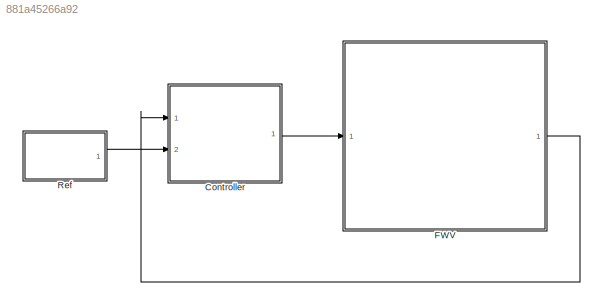
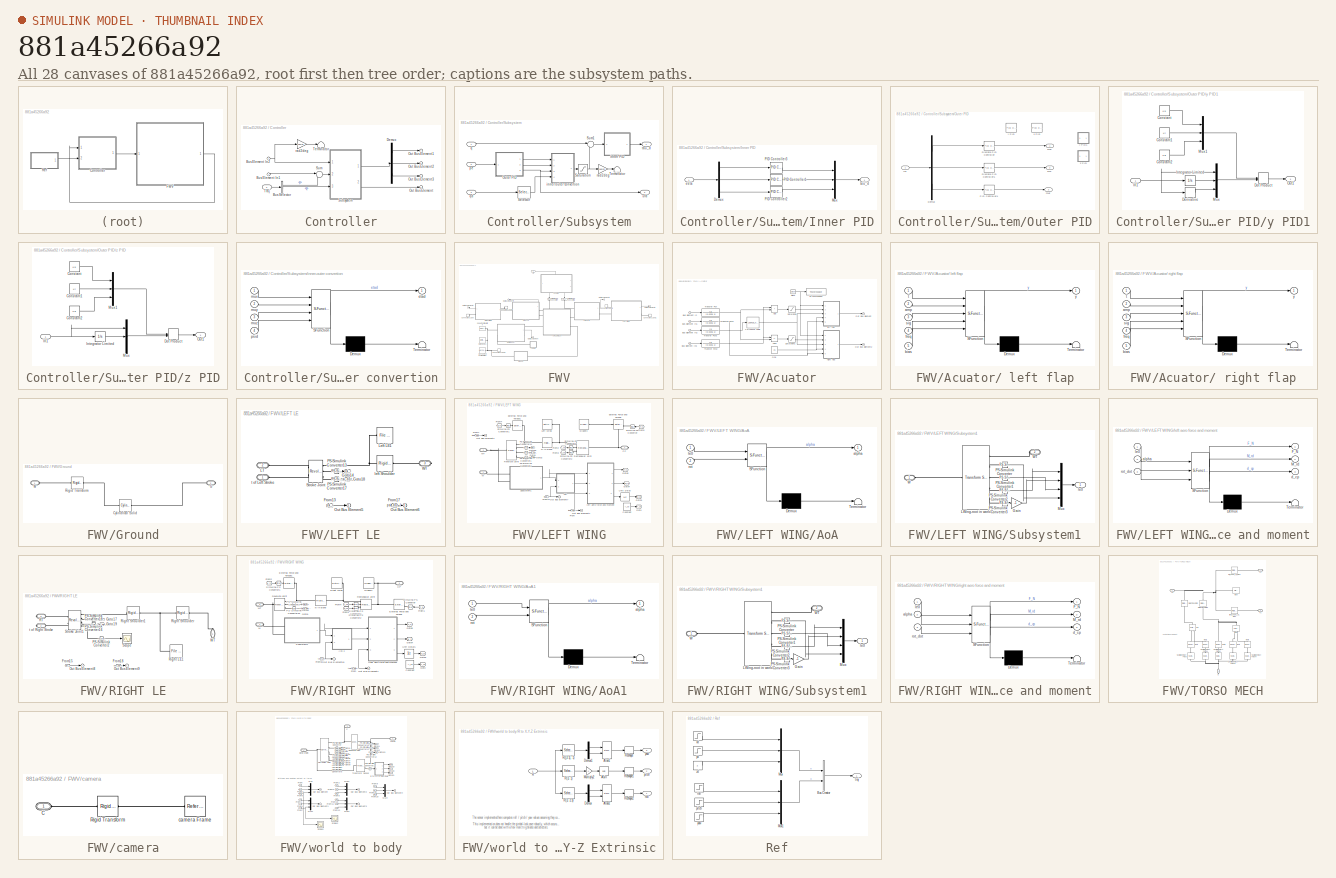
[diagram: thumbnail index - all 28 canvases of the model, root first then tree order]
MODEL slx_881a45266a92
KIND model
CONFIG AbsTol = 1e-3
CONFIG EnableMultiTasking = on
CONFIG FixedStep = 0.01
CONFIG MaxStep = 0.01
CONFIG MinStep = auto
CONFIG RelTol = 1e-3
CONFIG SampleTimeConstraint = Unconstrained
CONFIG SolverName = ode15s
CONFIG StartTime = 0.0
CONFIG StopTime = 6
WORKSPACE source: external: MATLAB File  (data not in archive)
BLOCK [SubSystem] Controller
  Ports = [2, 1]
  RequestExecContextInheritance = off
BLOCK [Inport] Controller/Bus Element In1
BLOCK [Inport] Controller/Bus Element In2
BLOCK [BusSelector] Controller/Bus Selector
  OutputSignals = p,q
  Ports = [1, 2]
BLOCK [Demux] Controller/Demux
  Outputs = 3
  Ports = [1, 3]
BLOCK [Outport] Controller/Out Bus Element
BLOCK [Outport] Controller/Out Bus Element1
BLOCK [Outport] Controller/Out Bus Element2
BLOCK [Outport] Controller/Out Bus Element3
BLOCK [SubSystem] Controller/Subsystem
  Ports = [3, 2]
  RequestExecContextInheritance = off
BLOCK [SubSystem] Controller/Subsystem/Inner PID
  Ports = [1, 1]
  RequestExecContextInheritance = off
BLOCK [Demux] Controller/Subsystem/Inner PID/Demux
  Outputs = 3
  Ports = [1, 3]
BLOCK [Mux] Controller/Subsystem/Inner PID/Mux
  DisplayOption = bar
  Inputs = 3
  Ports = [3, 1]
BLOCK [Reference] Controller/Subsystem/Inner PID/PID Controller1  REF=slpidlib/PID Controller
  Ports = [1, 1]
  SourceBlock = slpidlib/PID Controller
  SourceProductBaseCode = SL
  SourceType = PID 1dof
BLOCK [Reference] Controller/Subsystem/Inner PID/PID Controller2  REF=slpidlib/PID Controller
  Ports = [1, 1]
  SourceBlock = slpidlib/PID Controller
  SourceProductBaseCode = SL
  SourceType = PID 1dof
BLOCK [Reference] Controller/Subsystem/Inner PID/PID Controller3  REF=slpidlib/PID Controller
  Ports = [1, 1]
  SourceBlock = slpidlib/PID Controller
  SourceProductBaseCode = SL
  SourceType = PID 1dof
BLOCK [Inport] Controller/Subsystem/Inner PID/eeta
BLOCK [Outport] Controller/Subsystem/Inner PID/tau_d
BLOCK [SubSystem] Controller/Subsystem/Outer PID
  Ports = [1, 3]
  RequestExecContextInheritance = off
BLOCK [Demux] Controller/Subsystem/Outer PID/Demux
  Outputs = 3
  Ports = [1, 3]
BLOCK [Reference] Controller/Subsystem/Outer PID/Discrete PID Controller  REF=slpidlib/PID Controller
  Ports = [1, 1]
  SourceBlock = slpidlib/PID Controller
  SourceProductBaseCode = SL
  SourceType = PID 1dof
BLOCK [Reference] Controller/Subsystem/Outer PID/Discrete PID Controller1  REF=slpidlib/PID Controller
  Ports = [1, 1]
  SourceBlock = slpidlib/PID Controller
  SourceProductBaseCode = SL
  SourceType = PID 1dof
BLOCK [Inport] Controller/Subsystem/Outer PID/In1
BLOCK [Reference] Controller/Subsystem/Outer PID/PID Controller1  REF=slpidlib/PID Controller
  Ports = [1, 1]
  SourceBlock = slpidlib/PID Controller
  SourceProductBaseCode = SL
  SourceType = PID 1dof
BLOCK [Outport] Controller/Subsystem/Outer PID/mux
BLOCK [Outport] Controller/Subsystem/Outer PID/muy
  Port = 2
BLOCK [Outport] Controller/Subsystem/Outer PID/muz
  Port = 3
BLOCK [Reference] Controller/Subsystem/Outer PID/x PID  REF=slpidlib/PID Controller
  Commented = on
  Ports = [1, 1]
  SourceBlock = slpidlib/PID Controller
  SourceProductBaseCode = SL
  SourceType = PID 1dof
BLOCK [Reference] Controller/Subsystem/Outer PID/y PID  REF=slpidlib/PID Controller
  Commented = on
  Ports = [1, 1]
  SourceBlock = slpidlib/PID Controller
  SourceProductBaseCode = SL
  SourceType = PID 1dof
BLOCK [SubSystem] Controller/Subsystem/Outer PID/y PID1
  Commented = on
  Ports = [1, 1]
  RequestExecContextInheritance = off
BLOCK [Constant] Controller/Subsystem/Outer PID/y PID1/Constant
  Value = Kp
BLOCK [Constant] Controller/Subsystem/Outer PID/y PID1/Constant1
  Value = Ki
BLOCK [Constant] Controller/Subsystem/Outer PID/y PID1/Constant2
  Value = Kd
BLOCK [Derivative] Controller/Subsystem/Outer PID/y PID1/Derivative
  CoefficientInTFapproximation = 0.04
BLOCK [DotProduct] Controller/Subsystem/Outer PID/y PID1/Dot Product
  OutDataTypeStr = Inherit: Inherit via internal rule
BLOCK [Inport] Controller/Subsystem/Outer PID/y PID1/In1
BLOCK [Integrator] Controller/Subsystem/Outer PID/y PID1/Integrator Limited
  LimitOutput = on
  LowerSaturationLimit = -15
  Ports = [1, 1]
  UpperSaturationLimit = 15
BLOCK [Mux] Controller/Subsystem/Outer PID/y PID1/Mux
  DisplayOption = bar
  Inputs = 3
  Ports = [3, 1]
BLOCK [Mux] Controller/Subsystem/Outer PID/y PID1/Mux1
  DisplayOption = bar
  Inputs = 3
  Ports = [3, 1]
BLOCK [Outport] Controller/Subsystem/Outer PID/y PID1/Out1
BLOCK [SubSystem] Controller/Subsystem/Outer PID/z PID
  Commented = on
  Ports = [1, 1]
  RequestExecContextInheritance = off
BLOCK [Constant] Controller/Subsystem/Outer PID/z PID/Constant
  Value = Kp
BLOCK [Constant] Controller/Subsystem/Outer PID/z PID/Constant1
  Value = Ki
BLOCK [Constant] Controller/Subsystem/Outer PID/z PID/Constant2
  Value = Kd
BLOCK [DotProduct] Controller/Subsystem/Outer PID/z PID/Dot Product
  OutDataTypeStr = Inherit: Inherit via internal rule
BLOCK [Inport] Controller/Subsystem/Outer PID/z PID/In1
BLOCK [Integrator] Controller/Subsystem/Outer PID/z PID/Integrator Limited
  LimitOutput = on
  LowerSaturationLimit = -15
  Ports = [1, 1]
  UpperSaturationLimit = 15
BLOCK [Mux] Controller/Subsystem/Outer PID/z PID/Mux
  DisplayOption = bar
  Inputs = 3
  Ports = [3, 1]
BLOCK [Mux] Controller/Subsystem/Outer PID/z PID/Mux1
  DisplayOption = bar
  Inputs = 3
  Ports = [3, 1]
BLOCK [Outport] Controller/Subsystem/Outer PID/z PID/Out1
BLOCK [Saturate] Controller/Subsystem/Saturation
  LowerLimit = -pi/3
  UpperLimit = pi/3
  ZeroCross = off
BLOCK [Selector] Controller/Subsystem/Selector
  IndexOptions = Index vector (dialog)
  Indices = [3]
  InputPortWidth = 3
  OutputSizes = 1
  Ports = [1, 1]
BLOCK [Sum] Controller/Subsystem/Sum1
  Inputs = |-+
  Ports = [2, 1]
BLOCK [Terminator] Controller/Subsystem/Terminator
BLOCK [SubSystem] Controller/Subsystem/inner-outer convertion
  ErrorFcn = Stateflow.Translate.translate
  PermitHierarchicalResolution = ExplicitOnly
  Ports = [4, 1]
  RequestExecContextInheritance = off
  SFBlockType = MATLAB Function
  TreatAsAtomicUnit = on
BLOCK [Demux] Controller/Subsystem/inner-outer convertion/ Demux 
  Outputs = 1
  Ports = [1, 1]
BLOCK [S-Function] Controller/Subsystem/inner-outer convertion/ SFunction 
  EnableBusSupport = on
  FunctionName = sf_sfun
  PortCounts = [4 2]
  Ports = [4, 2]
  SFcnIsStateOwnerBlock = off
  SFunctionDeploymentMode = off
  Tag = Stateflow S-Function 10
BLOCK [Terminator] Controller/Subsystem/inner-outer convertion/ Terminator 
BLOCK [Outport] Controller/Subsystem/inner-outer convertion/etad
BLOCK [Inport] Controller/Subsystem/inner-outer convertion/mux
BLOCK [Inport] Controller/Subsystem/inner-outer convertion/muy
  Port = 2
BLOCK [Inport] Controller/Subsystem/inner-outer convertion/muz
  Port = 3
BLOCK [Inport] Controller/Subsystem/inner-outer convertion/psid
  Port = 4
BLOCK [Inport] Controller/Subsystem/pe
  Port = 2
BLOCK [Inport] Controller/Subsystem/q
BLOCK [Inport] Controller/Subsystem/qd
  Port = 3
BLOCK [Gain] Controller/Subsystem/rad2deg
  Gain = 180/pi
BLOCK [Outport] Controller/Subsystem/tau_d
BLOCK [Outport] Controller/Subsystem/ufd
  Port = 2
BLOCK [Sum] Controller/Sum
  Inputs = |-+
  Ports = [2, 1]
BLOCK [Terminator] Controller/Terminator
BLOCK [Inport] Controller/Traj
  Port = 2
BLOCK [Gain] Controller/rad2deg
  Gain = 180/pi
BLOCK [SubSystem] FWV
  Ports = [1, 1]
  RequestExecContextInheritance = off
BLOCK [SubSystem] FWV/Acuator
  PortSchema = {"entries":[{"content":{"sides":[{"content":{"connectorIds":[]},"type":"ConnectorPlacement.EquallySpacedRectSide","uuid":"db46f0ff-2b35-4735-b2ba-99ebad500531"},{"content":{"connectorIds":[],"side":"RIGHT"},"type":"ConnectorPlacement.EquallySpacedRectSide","uuid":"a05d2a9d-5b8e-445a-bb52-abca9ea78047"},{"content":{"connectorIds":["In1"],"side":"TOP"},"type":"ConnectorPlacement.EquallySpacedRectSid...<+391ch>
  Ports = [1, 2]
  RequestExecContextInheritance = off
BLOCK [SubSystem] FWV/Acuator/ left flap
  ErrorFcn = Stateflow.Translate.translate
  PermitHierarchicalResolution = ExplicitOnly
  Ports = [5, 1]
  RequestExecContextInheritance = off
  SFBlockType = MATLAB Function
  TreatAsAtomicUnit = on
BLOCK [Demux] FWV/Acuator/ left flap/ Demux 
  Outputs = 1
  Ports = [1, 1]
BLOCK [S-Function] FWV/Acuator/ left flap/ SFunction 
  EnableBusSupport = on
  FunctionName = sf_sfun
  PortCounts = [5 2]
  Ports = [5, 2]
  SFcnIsStateOwnerBlock = off
  SFunctionDeploymentMode = off
  Tag = Stateflow S-Function 8
BLOCK [Terminator] FWV/Acuator/ left flap/ Terminator 
BLOCK [Inport] FWV/Acuator/ left flap/amp
  Port = 2
BLOCK [Inport] FWV/Acuator/ left flap/bias
  Port = 5
BLOCK [Inport] FWV/Acuator/ left flap/freq
  Port = 4
BLOCK [Inport] FWV/Acuator/ left flap/sig
  Port = 3
BLOCK [Inport] FWV/Acuator/ left flap/t
BLOCK [Outport] FWV/Acuator/ left flap/y
BLOCK [SubSystem] FWV/Acuator/ right flap
  ErrorFcn = Stateflow.Translate.translate
  PermitHierarchicalResolution = ExplicitOnly
  Ports = [5, 1]
  RequestExecContextInheritance = off
  SFBlockType = MATLAB Function
  TreatAsAtomicUnit = on
BLOCK [Demux] FWV/Acuator/ right flap/ Demux 
  Outputs = 1
  Ports = [1, 1]
BLOCK [S-Function] FWV/Acuator/ right flap/ SFunction 
  EnableBusSupport = on
  FunctionName = sf_sfun
  PortCounts = [5 2]
  Ports = [5, 2]
  SFcnIsStateOwnerBlock = off
  SFunctionDeploymentMode = off
  Tag = Stateflow S-Function 9
BLOCK [Terminator] FWV/Acuator/ right flap/ Terminator 
BLOCK [Inport] FWV/Acuator/ right flap/amp
  Port = 2
BLOCK [Inport] FWV/Acuator/ right flap/bias
  Port = 5
BLOCK [Inport] FWV/Acuator/ right flap/freq
  Port = 4
BLOCK [Inport] FWV/Acuator/ right flap/sig
  Port = 3
BLOCK [Inport] FWV/Acuator/ right flap/t
BLOCK [Outport] FWV/Acuator/ right flap/y
BLOCK [Lookup_n-D] FWV/Acuator/1-D Lookup Table
  BreakpointsForDimension1 = [-1:1]
  InputPortMap = u0
  InternalRulePriority = Speed
  NumberOfTableDimensions = 1
  Ports = [1, 1]
  RndMeth = Simplest
  Table = 1.0./(1+exp(-2*[-1:1]))
BLOCK [Sum] FWV/Acuator/Add
  IconShape = rectangular
  Ports = [2, 1]
BLOCK [Sum] FWV/Acuator/Add1
  IconShape = rectangular
  Inputs = +-
  Ports = [2, 1]
BLOCK [Inport] FWV/Acuator/Bus Element In
BLOCK [Inport] FWV/Acuator/Bus Element In1
BLOCK [Inport] FWV/Acuator/Bus Element In2
BLOCK [Inport] FWV/Acuator/Bus Element In3
BLOCK [Clock] FWV/Acuator/Clock
BLOCK [Constant] FWV/Acuator/One
  OutDataTypeStr = Inherit: Inherit via back propagation
  Value = 25
BLOCK [Outport] FWV/Acuator/Out Bus Element
  Port = 2
BLOCK [Outport] FWV/Acuator/Out Bus Element2
BLOCK [Saturate] FWV/Acuator/Saturation
  LowerLimit = 0
  UpperLimit = pi/2
  ZeroCross = off
BLOCK [Saturate] FWV/Acuator/Saturation1
  LowerLimit = 0
  UpperLimit = pi/2
  ZeroCross = off
BLOCK [ToWorkspace] FWV/Acuator/To Workspace
  FixptAsFi = on
  MaxDataPoints = inf
  Ports = [1]
  SampleTime = -1
  VariableName = t
BLOCK [TransferFcn] FWV/Acuator/Transfer Fcn
  Denominator = [0.0226 1]
BLOCK [TransferFcn] FWV/Acuator/Transfer Fcn1
  Denominator = [0.0226 1]
BLOCK [TransferFcn] FWV/Acuator/Transfer Fcn2
  Denominator = [0.0226 1]
BLOCK [TransferFcn] FWV/Acuator/Transfer Fcn3
  Denominator = [0.0226 1]
BLOCK [ConnectionLabel] FWV/Connection Label
  Label = CP_R
  Ports = [0, 0, 0, 0, 0, 1]
BLOCK [ConnectionLabel] FWV/Connection Label1
  Label = CP_L
  Ports = [0, 0, 0, 0, 0, 1]
BLOCK [ConnectionLabel] FWV/Connection Label2
  Label = W
  Ports = [0, 0, 0, 0, 0, 1]
BLOCK [ConnectionLabel] FWV/Connection Label3
  Label = W
  Ports = [0, 0, 0, 0, 0, 1]
BLOCK [ConnectionLabel] FWV/Connection Label4
  Label = W
  Ports = [0, 0, 0, 0, 0, 1]
BLOCK [SubSystem] FWV/Ground
  Ports = [0, 0, 0, 0, 0, 1, 1]
  RequestExecContextInheritance = off
BLOCK [Reference] FWV/Ground/Cylindrical Solid  REF=sm_lib/Body Elements/Cylindrical Solid
  Ports = [0, 0, 0, 0, 0, 1, 1]
  SourceBlock = sm_lib/Body Elements/Cylindrical Solid
  SourceProductBaseCode = MS
  SourceType = Cylindrical Solid
BLOCK [PMIOPort] FWV/Ground/G
  Port = 2
  Side = Right
BLOCK [Reference] FWV/Ground/Rigid Transform  REF=sm_lib/Frames and
Transforms/Rigid
Transform
  Ports = [0, 0, 0, 0, 0, 1, 1]
  SourceBlock = sm_lib/Frames and\nTransforms/Rigid\nTransform
  SourceProductBaseCode = MS
  SourceType = Rigid\nTransform
BLOCK [PMIOPort] FWV/Ground/W
  Side = Left
BLOCK [SubSystem] FWV/LEFT LE
  Ports = [0, 1, 0, 0, 0, 2, 1]
  RequestExecContextInheritance = off
BLOCK [From] FWV/LEFT LE/From13
  GotoTag = psi_l
BLOCK [From] FWV/LEFT LE/From17
  GotoTag = psi_dot_l
BLOCK [Goto] FWV/LEFT LE/Goto14
  GotoTag = psi_l
BLOCK [Goto] FWV/LEFT LE/Goto18
  GotoTag = psi_dot_l
BLOCK [PMIOPort] FWV/LEFT LE/LT
  Port = 2
  Side = Left
BLOCK [Reference] FWV/LEFT LE/Left LE1  REF=sm_lib/Body Elements/File Solid
  Ports = [0, 0, 0, 0, 0, 0, 1]
  SourceBlock = sm_lib/Body Elements/File Solid
  SourceProductBaseCode = MS
  SourceType = File Solid
BLOCK [Outport] FWV/LEFT LE/Out Bus Element5
BLOCK [Outport] FWV/LEFT LE/Out Bus Element6
BLOCK [Reference] FWV/LEFT LE/PS-Simulink Converter13  REF=nesl_utility/PS-Simulink
Converter
  Ports = [0, 1, 0, 0, 0, 1]
  SourceBlock = nesl_utility/PS-Simulink\nConverter
  SourceProductBaseCode = PW,SS
  SourceType = PS-Simulink\nConverter
BLOCK [Reference] FWV/LEFT LE/PS-Simulink Converter17  REF=nesl_utility/PS-Simulink
Converter
  Ports = [0, 1, 0, 0, 0, 1]
  SourceBlock = nesl_utility/PS-Simulink\nConverter
  SourceProductBaseCode = PW,SS
  SourceType = PS-Simulink\nConverter
BLOCK [Reference] FWV/LEFT LE/Stroke Joint  REF=sm_lib/Joints/Revolute Joint
  Ports = [0, 0, 0, 0, 0, 2, 3]
  SourceBlock = sm_lib/Joints/Revolute Joint
  SourceProductBaseCode = MS
  SourceType = Revolute Joint
BLOCK [PMIOPort] FWV/LEFT LE/WT
  Port = 3
  Side = Right
BLOCK [Reference] FWV/LEFT LE/left Shoulder  REF=sm_lib/Frames and
Transforms/Rigid
Transform
  Ports = [0, 0, 0, 0, 0, 1, 1]
  SourceBlock = sm_lib/Frames and\nTransforms/Rigid\nTransform
  SourceProductBaseCode = MS
  SourceType = Rigid\nTransform
BLOCK [PMIOPort] FWV/LEFT LE/t of Left Stroke
  Side = Left
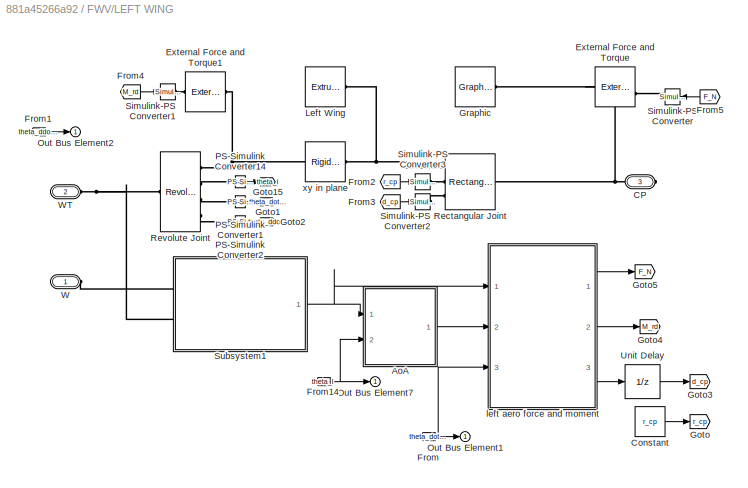
BLOCK [SubSystem] FWV/LEFT WING
  Ports = [0, 1, 0, 0, 0, 2, 1]
  RequestExecContextInheritance = off
BLOCK [SubSystem] FWV/LEFT WING/AoA
  ErrorFcn = Stateflow.Translate.translate
  PermitHierarchicalResolution = ExplicitOnly
  Ports = [2, 1]
  RequestExecContextInheritance = off
  SFBlockType = MATLAB Function
  TreatAsAtomicUnit = on
BLOCK [Demux] FWV/LEFT WING/AoA/ Demux 
  Outputs = 1
  Ports = [1, 1]
BLOCK [S-Function] FWV/LEFT WING/AoA/ SFunction 
  EnableBusSupport = on
  FunctionName = sf_sfun
  Parameters = Rw,r22,r33
  PortCounts = [2 2]
  Ports = [2, 2]
  SFcnIsStateOwnerBlock = off
  SFunctionDeploymentMode = off
  Tag = Stateflow S-Function 13
BLOCK [Terminator] FWV/LEFT WING/AoA/ Terminator 
BLOCK [Outport] FWV/LEFT WING/AoA/alpha
BLOCK [Inport] FWV/LEFT WING/AoA/le0
BLOCK [Inport] FWV/LEFT WING/AoA/rot
  Port = 2
BLOCK [PMIOPort] FWV/LEFT WING/CP
  Port = 3
  Side = Right
BLOCK [Constant] FWV/LEFT WING/Constant
  Value = r_cp
BLOCK [Reference] FWV/LEFT WING/External Force and Torque  REF=sm_lib/Forces and
Torques/External Force
and Torque
  Ports = [0, 0, 0, 0, 0, 2, 1]
  SourceBlock = sm_lib/Forces and\nTorques/External Force\nand Torque
  SourceProductBaseCode = MS
  SourceType = External Force\nand Torque
BLOCK [Reference] FWV/LEFT WING/External Force and Torque1  REF=sm_lib/Forces and
Torques/External Force
and Torque
  Ports = [0, 0, 0, 0, 0, 1, 1]
  SourceBlock = sm_lib/Forces and\nTorques/External Force\nand Torque
  SourceProductBaseCode = MS
  SourceType = External Force\nand Torque
BLOCK [From] FWV/LEFT WING/From
  GotoTag = theta_dot_l
BLOCK [From] FWV/LEFT WING/From1
  GotoTag = theta_ddot_l
BLOCK [From] FWV/LEFT WING/From14
  GotoTag = theta_l
BLOCK [From] FWV/LEFT WING/From2
  GotoTag = r_cp
BLOCK [From] FWV/LEFT WING/From3
  GotoTag = d_cp
BLOCK [From] FWV/LEFT WING/From4
  GotoTag = M_rd
BLOCK [From] FWV/LEFT WING/From5
  GotoTag = F_N
BLOCK [Goto] FWV/LEFT WING/Goto
  GotoTag = r_cp
BLOCK [Goto] FWV/LEFT WING/Goto1
  GotoTag = theta_dot_l
BLOCK [Goto] FWV/LEFT WING/Goto15
  GotoTag = theta_l
BLOCK [Goto] FWV/LEFT WING/Goto2
  GotoTag = theta_ddot_l
BLOCK [Goto] FWV/LEFT WING/Goto3
  GotoTag = d_cp
BLOCK [Goto] FWV/LEFT WING/Goto4
  GotoTag = M_rd
BLOCK [Goto] FWV/LEFT WING/Goto5
  GotoTag = F_N
BLOCK [Reference] FWV/LEFT WING/Graphic  REF=sm_lib/Body Elements/Graphic
  Ports = [0, 0, 0, 0, 0, 0, 1]
  SourceBlock = sm_lib/Body Elements/Graphic
  SourceProductBaseCode = MS
  SourceType = Graphic
BLOCK [Reference] FWV/LEFT WING/Left Wing  REF=sm_lib/Body Elements/Extruded Solid
  Ports = [0, 0, 0, 0, 0, 0, 1]
  SourceBlock = sm_lib/Body Elements/Extruded Solid
  SourceProductBaseCode = MS
  SourceType = Extruded Solid
BLOCK [Outport] FWV/LEFT WING/Out Bus Element1
BLOCK [Outport] FWV/LEFT WING/Out Bus Element2
BLOCK [Outport] FWV/LEFT WING/Out Bus Element7
BLOCK [Reference] FWV/LEFT WING/PS-Simulink Converter1  REF=nesl_utility/PS-Simulink
Converter
  Ports = [0, 1, 0, 0, 0, 1]
  SourceBlock = nesl_utility/PS-Simulink\nConverter
  SourceProductBaseCode = PW,SS
  SourceType = PS-Simulink\nConverter
BLOCK [Reference] FWV/LEFT WING/PS-Simulink Converter14  REF=nesl_utility/PS-Simulink
Converter
  Ports = [0, 1, 0, 0, 0, 1]
  SourceBlock = nesl_utility/PS-Simulink\nConverter
  SourceProductBaseCode = PW,SS
  SourceType = PS-Simulink\nConverter
BLOCK [Reference] FWV/LEFT WING/PS-Simulink Converter2  REF=nesl_utility/PS-Simulink
Converter
  Ports = [0, 1, 0, 0, 0, 1]
  SourceBlock = nesl_utility/PS-Simulink\nConverter
  SourceProductBaseCode = PW,SS
  SourceType = PS-Simulink\nConverter
BLOCK [Reference] FWV/LEFT WING/Rectangular Joint  REF=sm_lib/Joints/Rectangular
Joint
  Ports = [0, 0, 0, 0, 0, 3, 1]
  SourceBlock = sm_lib/Joints/Rectangular\nJoint
  SourceProductBaseCode = MS
  SourceType = Rectangular\nJoint
BLOCK [Reference] FWV/LEFT WING/Revolute Joint  REF=sm_lib/Joints/Revolute Joint
  Ports = [0, 0, 0, 0, 0, 1, 4]
  SourceBlock = sm_lib/Joints/Revolute Joint
  SourceProductBaseCode = MS
  SourceType = Revolute Joint
BLOCK [Reference] FWV/LEFT WING/Simulink-PS Converter  REF=nesl_utility/Simulink-PS
Converter
  Ports = [1, 0, 0, 0, 0, 0, 1]
  SourceBlock = nesl_utility/Simulink-PS\nConverter
  SourceProductBaseCode = PW,SS
  SourceType = Simulink-PS\nConverter
BLOCK [Reference] FWV/LEFT WING/Simulink-PS Converter1  REF=nesl_utility/Simulink-PS
Converter
  Ports = [1, 0, 0, 0, 0, 0, 1]
  SourceBlock = nesl_utility/Simulink-PS\nConverter
  SourceProductBaseCode = PW,SS
  SourceType = Simulink-PS\nConverter
BLOCK [Reference] FWV/LEFT WING/Simulink-PS Converter2  REF=nesl_utility/Simulink-PS
Converter
  Ports = [1, 0, 0, 0, 0, 0, 1]
  SourceBlock = nesl_utility/Simulink-PS\nConverter
  SourceProductBaseCode = PW,SS
  SourceType = Simulink-PS\nConverter
BLOCK [Reference] FWV/LEFT WING/Simulink-PS Converter3  REF=nesl_utility/Simulink-PS
Converter
  Ports = [1, 0, 0, 0, 0, 0, 1]
  SourceBlock = nesl_utility/Simulink-PS\nConverter
  SourceProductBaseCode = PW,SS
  SourceType = Simulink-PS\nConverter
BLOCK [SubSystem] FWV/LEFT WING/Subsystem1
  Ports = [0, 1, 0, 0, 0, 2]
  RequestExecContextInheritance = off
BLOCK [Gain] FWV/LEFT WING/Subsystem1/Gain
  Gain = -1
BLOCK [Reference] FWV/LEFT WING/Subsystem1/LWing-root in world  REF=sm_lib/Frames and
Transforms/Transform
Sensor
  Ports = [0, 0, 0, 0, 0, 1, 5]
  SourceBlock = sm_lib/Frames and\nTransforms/Transform\nSensor
  SourceProductBaseCode = MS
  SourceType = Transform\nSensor
BLOCK [Mux] FWV/LEFT WING/Subsystem1/Mux
  DisplayOption = bar
  Ports = [4, 1]
BLOCK [Reference] FWV/LEFT WING/Subsystem1/PS-Simulink Converter  REF=nesl_utility/PS-Simulink
Converter
  Ports = [0, 1, 0, 0, 0, 1]
  SourceBlock = nesl_utility/PS-Simulink\nConverter
  SourceProductBaseCode = PW,SS
  SourceType = PS-Simulink\nConverter
BLOCK [Reference] FWV/LEFT WING/Subsystem1/PS-Simulink Converter1  REF=nesl_utility/PS-Simulink
Converter
  Ports = [0, 1, 0, 0, 0, 1]
  SourceBlock = nesl_utility/PS-Simulink\nConverter
  SourceProductBaseCode = PW,SS
  SourceType = PS-Simulink\nConverter
BLOCK [Reference] FWV/LEFT WING/Subsystem1/PS-Simulink Converter2  REF=nesl_utility/PS-Simulink
Converter
  Ports = [0, 1, 0, 0, 0, 1]
  SourceBlock = nesl_utility/PS-Simulink\nConverter
  SourceProductBaseCode = PW,SS
  SourceType = PS-Simulink\nConverter
BLOCK [Reference] FWV/LEFT WING/Subsystem1/PS-Simulink Converter3  REF=nesl_utility/PS-Simulink
Converter
  Ports = [0, 1, 0, 0, 0, 1]
  SourceBlock = nesl_utility/PS-Simulink\nConverter
  SourceProductBaseCode = PW,SS
  SourceType = PS-Simulink\nConverter
BLOCK [PMIOPort] FWV/LEFT WING/Subsystem1/W
  Side = Left
BLOCK [PMIOPort] FWV/LEFT WING/Subsystem1/WT
  Port = 2
  Side = Left
BLOCK [Outport] FWV/LEFT WING/Subsystem1/le0
BLOCK [UnitDelay] FWV/LEFT WING/Unit Delay
  HasFrameUpgradeWarning = on
  InitialCondition = -0.51*c_bar
  SampleTime = -1
BLOCK [PMIOPort] FWV/LEFT WING/W
  Side = Left
BLOCK [PMIOPort] FWV/LEFT WING/WT
  Port = 2
  Side = Left
BLOCK [SubSystem] FWV/LEFT WING/left aero force and moment
  ErrorFcn = Stateflow.Translate.translate
  PermitHierarchicalResolution = ExplicitOnly
  Ports = [3, 3]
  RequestExecContextInheritance = off
  SFBlockType = MATLAB Function
  TreatAsAtomicUnit = on
BLOCK [Demux] FWV/LEFT WING/left aero force and moment/ Demux 
  Outputs = 1
  Ports = [1, 1]
BLOCK [S-Function] FWV/LEFT WING/left aero force and moment/ SFunction 
  EnableBusSupport = on
  FunctionName = sf_sfun
  Parameters = A_D,A_L,C_D0,Rw,c_bar,r00,r11,r22,rho,z00,z11,z22,zrd
  PortCounts = [3 4]
  Ports = [3, 4]
  SFcnIsStateOwnerBlock = off
  SFunctionDeploymentMode = off
  Tag = Stateflow S-Function 15
BLOCK [Terminator] FWV/LEFT WING/left aero force and moment/ Terminator 
BLOCK [Outport] FWV/LEFT WING/left aero force and moment/F_N
BLOCK [Outport] FWV/LEFT WING/left aero force and moment/M_rd
  Port = 2
BLOCK [Inport] FWV/LEFT WING/left aero force and moment/alpha
  Port = 2
BLOCK [Outport] FWV/LEFT WING/left aero force and moment/d_cp
  Port = 3
BLOCK [Inport] FWV/LEFT WING/left aero force and moment/le0
BLOCK [Inport] FWV/LEFT WING/left aero force and moment/rot_dot
  Port = 3
BLOCK [Reference] FWV/LEFT WING/xy in plane  REF=sm_lib/Frames and
Transforms/Rigid
Transform
  Ports = [0, 0, 0, 0, 0, 1, 1]
  SourceBlock = sm_lib/Frames and\nTransforms/Rigid\nTransform
  SourceProductBaseCode = MS
  SourceType = Rigid\nTransform
BLOCK [Reference] FWV/Mechanism Configuration  REF=sm_lib/Utilities/Mechanism
Configuration
  Ports = [0, 0, 0, 0, 0, 0, 1]
  SourceBlock = sm_lib/Utilities/Mechanism\nConfiguration
  SourceProductBaseCode = MS
  SourceType = Mechanism\nConfiguration
BLOCK [Outport] FWV/Out Bus Element
BLOCK [Outport] FWV/Out Bus Element1
BLOCK [Outport] FWV/Out Bus Element2
BLOCK [Outport] FWV/Out Bus Element3
BLOCK [Outport] FWV/Out Bus Element4
BLOCK [SubSystem] FWV/RIGHT LE
  PortSchema = {"entries":[{"content":{"sides":[{"content":{"connectorIds":["Out1","LConn1"]},"type":"ConnectorPlacement.EquallySpacedRectSide","uuid":"e80f0529-82a8-4e91-8f70-1f5fff48efb0"},{"content":{"connectorIds":["RConn1","RConn2"],"side":"RIGHT"},"type":"ConnectorPlacement.EquallySpacedRectSide","uuid":"c7e3ee7d-7bee-46da-b210-768e5832b89d"},{"content":{"connectorIds":[],"side":"TOP"},"type":"ConnectorPla...<+261ch>
  Ports = [0, 1, 0, 0, 0, 1, 2]
  RequestExecContextInheritance = off
BLOCK [From] FWV/RIGHT LE/From15
  GotoTag = psi_r
BLOCK [From] FWV/RIGHT LE/From18
  GotoTag = psi_dot_r
BLOCK [Goto] FWV/RIGHT LE/Goto17
  GotoTag = psi_r
BLOCK [Goto] FWV/RIGHT LE/Goto19
  GotoTag = psi_dot_r
BLOCK [Outport] FWV/RIGHT LE/Out Bus Element8
BLOCK [Outport] FWV/RIGHT LE/Out Bus Element9
BLOCK [Reference] FWV/RIGHT LE/PS-Simulink Converter16  REF=nesl_utility/PS-Simulink
Converter
  Ports = [0, 1, 0, 0, 0, 1]
  SourceBlock = nesl_utility/PS-Simulink\nConverter
  SourceProductBaseCode = PW,SS
  SourceType = PS-Simulink\nConverter
BLOCK [Reference] FWV/RIGHT LE/PS-Simulink Converter18  REF=nesl_utility/PS-Simulink
Converter
  Ports = [0, 1, 0, 0, 0, 1]
  SourceBlock = nesl_utility/PS-Simulink\nConverter
  SourceProductBaseCode = PW,SS
  SourceType = PS-Simulink\nConverter
BLOCK [Reference] FWV/RIGHT LE/PS-Simulink Converter2  REF=nesl_utility/PS-Simulink
Converter
  Ports = [0, 1, 0, 0, 0, 1]
  SourceBlock = nesl_utility/PS-Simulink\nConverter
  SourceProductBaseCode = PW,SS
  SourceType = PS-Simulink\nConverter
BLOCK [PMIOPort] FWV/RIGHT LE/RT
  Port = 3
  Side = Right
BLOCK [Reference] FWV/RIGHT LE/Right LE1  REF=sm_lib/Body Elements/File Solid
  Ports = [0, 0, 0, 0, 0, 0, 1]
  SourceBlock = sm_lib/Body Elements/File Solid
  SourceProductBaseCode = MS
  SourceType = File Solid
BLOCK [Reference] FWV/RIGHT LE/Right Shoulder  REF=sm_lib/Frames and
Transforms/Rigid
Transform
  Ports = [0, 0, 0, 0, 0, 1, 1]
  SourceBlock = sm_lib/Frames and\nTransforms/Rigid\nTransform
  SourceProductBaseCode = MS
  SourceType = Rigid\nTransform
BLOCK [Reference] FWV/RIGHT LE/Right Shoulder1  REF=sm_lib/Frames and
Transforms/Rigid
Transform
  Ports = [0, 0, 0, 0, 0, 1, 1]
  SourceBlock = sm_lib/Frames and\nTransforms/Rigid\nTransform
  SourceProductBaseCode = MS
  SourceType = Rigid\nTransform
BLOCK [Scope] FWV/RIGHT LE/Scope
  Floating = off
  NumInputPorts = 1
  Ports = [1]
  ScopeSpecificationString = Simulink.scopes.TimeScopeBlockCfg('CurrentConfiguration', extmgr.ConfigurationSet(extmgr.Configuration('Core','General UI',true),extmgr.Configuration('Core','Source UI',true),extmgr.Configuration('Sources','WiredSimulink',true,'DataLoggingVariableName','ScopeData2'),extmgr.Configuration('Visuals','Time Domain',true,'SerializedDisplays',{struct('MinYLimReal','-1262363.57853','MaxYLimReal','1231317....<+1622ch>
BLOCK [Reference] FWV/RIGHT LE/Stroke Joint1  REF=sm_lib/Joints/Revolute Joint
  Ports = [0, 0, 0, 0, 0, 2, 4]
  SourceBlock = sm_lib/Joints/Revolute Joint
  SourceProductBaseCode = MS
  SourceType = Revolute Joint
BLOCK [PMIOPort] FWV/RIGHT LE/WT
  NameLocation = right
  Side = Left
BLOCK [PMIOPort] FWV/RIGHT LE/t of Right Stroke
  Port = 2
  Side = Right
BLOCK [SubSystem] FWV/RIGHT WING
  Ports = [0, 1, 0, 0, 0, 2, 1]
  RequestExecContextInheritance = off
BLOCK [SubSystem] FWV/RIGHT WING/AoA1
  ErrorFcn = Stateflow.Translate.translate
  PermitHierarchicalResolution = ExplicitOnly
  Ports = [2, 1]
  RequestExecContextInheritance = off
  SFBlockType = MATLAB Function
  TreatAsAtomicUnit = on
BLOCK [Demux] FWV/RIGHT WING/AoA1/ Demux 
  Outputs = 1
  Ports = [1, 1]
BLOCK [S-Function] FWV/RIGHT WING/AoA1/ SFunction 
  EnableBusSupport = on
  FunctionName = sf_sfun
  Parameters = Rw,r22,r33
  PortCounts = [2 2]
  Ports = [2, 2]
  SFcnIsStateOwnerBlock = off
  SFunctionDeploymentMode = off
  Tag = Stateflow S-Function 16
BLOCK [Terminator] FWV/RIGHT WING/AoA1/ Terminator 
BLOCK [Outport] FWV/RIGHT WING/AoA1/alpha
BLOCK [Inport] FWV/RIGHT WING/AoA1/le0
BLOCK [Inport] FWV/RIGHT WING/AoA1/rot
  Port = 2
BLOCK [PMIOPort] FWV/RIGHT WING/CP
  Port = 3
  Side = Right
BLOCK [Constant] FWV/RIGHT WING/Constant
  Value = -r_cp
BLOCK [Reference] FWV/RIGHT WING/External Force and Torque  REF=sm_lib/Forces and
Torques/External Force
and Torque
  Ports = [0, 0, 0, 0, 0, 2, 1]
  SourceBlock = sm_lib/Forces and\nTorques/External Force\nand Torque
  SourceProductBaseCode = MS
  SourceType = External Force\nand Torque
BLOCK [Reference] FWV/RIGHT WING/External Force and Torque1  REF=sm_lib/Forces and
Torques/External Force
and Torque
  Ports = [0, 0, 0, 0, 0, 1, 1]
  SourceBlock = sm_lib/Forces and\nTorques/External Force\nand Torque
  SourceProductBaseCode = MS
  SourceType = External Force\nand Torque
BLOCK [From] FWV/RIGHT WING/From
  GotoTag = theta_dot_r
BLOCK [From] FWV/RIGHT WING/From1
  GotoTag = F_N
BLOCK [From] FWV/RIGHT WING/From16
  GotoTag = theta_r
BLOCK [From] FWV/RIGHT WING/From2
  GotoTag = M_rd
BLOCK [From] FWV/RIGHT WING/From3
  GotoTag = d_cp
BLOCK [From] FWV/RIGHT WING/From4
  GotoTag = r_cp
BLOCK [Goto] FWV/RIGHT WING/Goto
  GotoTag = r_cp
BLOCK [Goto] FWV/RIGHT WING/Goto1
  GotoTag = theta_dot_r
BLOCK [Goto] FWV/RIGHT WING/Goto16
  GotoTag = theta_r
BLOCK [Goto] FWV/RIGHT WING/Goto3
  GotoTag = d_cp
BLOCK [Goto] FWV/RIGHT WING/Goto4
  GotoTag = M_rd
BLOCK [Goto] FWV/RIGHT WING/Goto5
  GotoTag = F_N
BLOCK [Reference] FWV/RIGHT WING/Graphic  REF=sm_lib/Body Elements/Graphic
  Ports = [0, 0, 0, 0, 0, 0, 1]
  SourceBlock = sm_lib/Body Elements/Graphic
  SourceProductBaseCode = MS
  SourceType = Graphic
BLOCK [Outport] FWV/RIGHT WING/Out Bus Element1
BLOCK [Outport] FWV/RIGHT WING/Out Bus Element10
BLOCK [Reference] FWV/RIGHT WING/PS-Simulink Converter1  REF=nesl_utility/PS-Simulink
Converter
  Ports = [0, 1, 0, 0, 0, 1]
  SourceBlock = nesl_utility/PS-Simulink\nConverter
  SourceProductBaseCode = PW,SS
  SourceType = PS-Simulink\nConverter
BLOCK [Reference] FWV/RIGHT WING/PS-Simulink Converter15  REF=nesl_utility/PS-Simulink
Converter
  Ports = [0, 1, 0, 0, 0, 1]
  SourceBlock = nesl_utility/PS-Simulink\nConverter
  SourceProductBaseCode = PW,SS
  SourceType = PS-Simulink\nConverter
BLOCK [Reference] FWV/RIGHT WING/Rectangular Joint  REF=sm_lib/Joints/Rectangular
Joint
  Ports = [0, 0, 0, 0, 0, 3, 1]
  SourceBlock = sm_lib/Joints/Rectangular\nJoint
  SourceProductBaseCode = MS
  SourceType = Rectangular\nJoint
BLOCK [Reference] FWV/RIGHT WING/Revolute Joint  REF=sm_lib/Joints/Revolute Joint
  Ports = [0, 0, 0, 0, 0, 1, 3]
  SourceBlock = sm_lib/Joints/Revolute Joint
  SourceProductBaseCode = MS
  SourceType = Revolute Joint
BLOCK [Reference] FWV/RIGHT WING/Right Wing  REF=sm_lib/Body Elements/Extruded Solid
  Ports = [0, 0, 0, 0, 0, 0, 1]
  SourceBlock = sm_lib/Body Elements/Extruded Solid
  SourceProductBaseCode = MS
  SourceType = Extruded Solid
BLOCK [Reference] FWV/RIGHT WING/Simulink-PS Converter  REF=nesl_utility/Simulink-PS
Converter
  Ports = [1, 0, 0, 0, 0, 0, 1]
  SourceBlock = nesl_utility/Simulink-PS\nConverter
  SourceProductBaseCode = PW,SS
  SourceType = Simulink-PS\nConverter
BLOCK [Reference] FWV/RIGHT WING/Simulink-PS Converter1  REF=nesl_utility/Simulink-PS
Converter
  Ports = [1, 0, 0, 0, 0, 0, 1]
  SourceBlock = nesl_utility/Simulink-PS\nConverter
  SourceProductBaseCode = PW,SS
  SourceType = Simulink-PS\nConverter
BLOCK [Reference] FWV/RIGHT WING/Simulink-PS Converter2  REF=nesl_utility/Simulink-PS
Converter
  Ports = [1, 0, 0, 0, 0, 0, 1]
  SourceBlock = nesl_utility/Simulink-PS\nConverter
  SourceProductBaseCode = PW,SS
  SourceType = Simulink-PS\nConverter
BLOCK [Reference] FWV/RIGHT WING/Simulink-PS Converter3  REF=nesl_utility/Simulink-PS
Converter
  Ports = [1, 0, 0, 0, 0, 0, 1]
  SourceBlock = nesl_utility/Simulink-PS\nConverter
  SourceProductBaseCode = PW,SS
  SourceType = Simulink-PS\nConverter
BLOCK [SubSystem] FWV/RIGHT WING/Subsystem1
  Ports = [0, 1, 0, 0, 0, 2]
  RequestExecContextInheritance = off
BLOCK [Gain] FWV/RIGHT WING/Subsystem1/Gain
  Gain = -1
BLOCK [Reference] FWV/RIGHT WING/Subsystem1/LWing-root in world  REF=sm_lib/Frames and
Transforms/Transform
Sensor
  Ports = [0, 0, 0, 0, 0, 1, 5]
  SourceBlock = sm_lib/Frames and\nTransforms/Transform\nSensor
  SourceProductBaseCode = MS
  SourceType = Transform\nSensor
BLOCK [Mux] FWV/RIGHT WING/Subsystem1/Mux
  DisplayOption = bar
  Ports = [4, 1]
BLOCK [Reference] FWV/RIGHT WING/Subsystem1/PS-Simulink Converter  REF=nesl_utility/PS-Simulink
Converter
  Ports = [0, 1, 0, 0, 0, 1]
  SourceBlock = nesl_utility/PS-Simulink\nConverter
  SourceProductBaseCode = PW,SS
  SourceType = PS-Simulink\nConverter
BLOCK [Reference] FWV/RIGHT WING/Subsystem1/PS-Simulink Converter1  REF=nesl_utility/PS-Simulink
Converter
  Ports = [0, 1, 0, 0, 0, 1]
  SourceBlock = nesl_utility/PS-Simulink\nConverter
  SourceProductBaseCode = PW,SS
  SourceType = PS-Simulink\nConverter
BLOCK [Reference] FWV/RIGHT WING/Subsystem1/PS-Simulink Converter2  REF=nesl_utility/PS-Simulink
Converter
  Ports = [0, 1, 0, 0, 0, 1]
  SourceBlock = nesl_utility/PS-Simulink\nConverter
  SourceProductBaseCode = PW,SS
  SourceType = PS-Simulink\nConverter
BLOCK [Reference] FWV/RIGHT WING/Subsystem1/PS-Simulink Converter3  REF=nesl_utility/PS-Simulink
Converter
  Ports = [0, 1, 0, 0, 0, 1]
  SourceBlock = nesl_utility/PS-Simulink\nConverter
  SourceProductBaseCode = PW,SS
  SourceType = PS-Simulink\nConverter
BLOCK [PMIOPort] FWV/RIGHT WING/Subsystem1/W
  Side = Left
BLOCK [PMIOPort] FWV/RIGHT WING/Subsystem1/WT
  Port = 2
  Side = Left
BLOCK [Outport] FWV/RIGHT WING/Subsystem1/le0
BLOCK [UnitDelay] FWV/RIGHT WING/Unit Delay1
  HasFrameUpgradeWarning = on
  InitialCondition = -0.51*c_bar
  SampleTime = -1
BLOCK [PMIOPort] FWV/RIGHT WING/W
  Side = Left
BLOCK [PMIOPort] FWV/RIGHT WING/WT
  Port = 2
  Side = Left
BLOCK [SubSystem] FWV/RIGHT WING/right aero force and moment
  ErrorFcn = Stateflow.Translate.translate
  PermitHierarchicalResolution = ExplicitOnly
  Ports = [3, 3]
  RequestExecContextInheritance = off
  SFBlockType = MATLAB Function
  TreatAsAtomicUnit = on
BLOCK [Demux] FWV/RIGHT WING/right aero force and moment/ Demux 
  Outputs = 1
  Ports = [1, 1]
BLOCK [S-Function] FWV/RIGHT WING/right aero force and moment/ SFunction 
  EnableBusSupport = on
  FunctionName = sf_sfun
  Parameters = A_D,A_L,C_D0,Rw,c_bar,r00,r11,r22,rho,z00,z11,z22,zrd
  PortCounts = [3 4]
  Ports = [3, 4]
  SFcnIsStateOwnerBlock = off
  SFunctionDeploymentMode = off
  Tag = Stateflow S-Function 18
BLOCK [Terminator] FWV/RIGHT WING/right aero force and moment/ Terminator 
BLOCK [Outport] FWV/RIGHT WING/right aero force and moment/F_N
BLOCK [Outport] FWV/RIGHT WING/right aero force and moment/M_rd
  Port = 2
BLOCK [Inport] FWV/RIGHT WING/right aero force and moment/alpha
  Port = 2
BLOCK [Outport] FWV/RIGHT WING/right aero force and moment/d_cp
  Port = 3
BLOCK [Inport] FWV/RIGHT WING/right aero force and moment/le0
BLOCK [Inport] FWV/RIGHT WING/right aero force and moment/rot_dot
  Port = 3
BLOCK [Reference] FWV/RIGHT WING/xy in plane  REF=sm_lib/Frames and
Transforms/Rigid
Transform
  Ports = [0, 0, 0, 0, 0, 1, 1]
  SourceBlock = sm_lib/Frames and\nTransforms/Rigid\nTransform
  SourceProductBaseCode = MS
  SourceType = Rigid\nTransform
BLOCK [Reference] FWV/Simulink-PS Converter3  REF=nesl_utility/Simulink-PS
Converter
  NameLocation = left
  Ports = [1, 0, 0, 0, 0, 0, 1]
  SourceBlock = nesl_utility/Simulink-PS\nConverter
  SourceProductBaseCode = PW,SS
  SourceType = Simulink-PS\nConverter
BLOCK [Reference] FWV/Simulink-PS Converter7  REF=nesl_utility/Simulink-PS
Converter
  NameLocation = right
  Ports = [1, 0, 0, 0, 0, 0, 1]
  SourceBlock = nesl_utility/Simulink-PS\nConverter
  SourceProductBaseCode = PW,SS
  SourceType = Simulink-PS\nConverter
BLOCK [Reference] FWV/Solver Configuration  REF=nesl_utility/Solver
Configuration
  Ports = [0, 0, 0, 0, 0, 0, 1]
  SourceBlock = nesl_utility/Solver\nConfiguration
  SourceProductBaseCode = PW,SS
  SourceType = Solver\nConfiguration
BLOCK [SubSystem] FWV/TORSO MECH
  Ports = [0, 0, 0, 0, 0, 2, 2]
  RequestExecContextInheritance = off
BLOCK [PMIOPort] FWV/TORSO MECH/F1
  Side = Right
BLOCK [PMIOPort] FWV/TORSO MECH/F2
  Port = 2
  Side = Left
BLOCK [PMIOPort] FWV/TORSO MECH/G
  NameLocation = left
  Port = 4
  Side = Right
BLOCK [Reference] FWV/TORSO MECH/Rigid Transform  REF=sm_lib/Frames and
Transforms/Rigid
Transform
  NameLocation = left
  Ports = [0, 0, 0, 0, 0, 1, 1]
  SourceBlock = sm_lib/Frames and\nTransforms/Rigid\nTransform
  SourceProductBaseCode = MS
  SourceType = Rigid\nTransform
BLOCK [Reference] FWV/TORSO MECH/Rigid Transform1  REF=sm_lib/Frames and
Transforms/Rigid
Transform
  NameLocation = left
  Ports = [0, 0, 0, 0, 0, 1, 1]
  SourceBlock = sm_lib/Frames and\nTransforms/Rigid\nTransform
  SourceProductBaseCode = MS
  SourceType = Rigid\nTransform
BLOCK [Reference] FWV/TORSO MECH/Spatial Contact Force  REF=sm_lib/Forces and
Torques/Spatial
Contact Force
  NameLocation = right
  Ports = [0, 0, 0, 0, 0, 1, 1]
  SourceBlock = sm_lib/Forces and\nTorques/Spatial\nContact Force
  SourceProductBaseCode = MS
  SourceType = Spatial\nContact Force
BLOCK [Reference] FWV/TORSO MECH/Spatial Contact Force1  REF=sm_lib/Forces and
Torques/Spatial
Contact Force
  NameLocation = right
  Ports = [0, 0, 0, 0, 0, 1, 1]
  SourceBlock = sm_lib/Forces and\nTorques/Spatial\nContact Force
  SourceProductBaseCode = MS
  SourceType = Spatial\nContact Force
BLOCK [Reference] FWV/TORSO MECH/Spatial Contact Force2  REF=sm_lib/Forces and
Torques/Spatial
Contact Force
  NameLocation = right
  Ports = [0, 0, 0, 0, 0, 1, 1]
  SourceBlock = sm_lib/Forces and\nTorques/Spatial\nContact Force
  SourceProductBaseCode = MS
  SourceType = Spatial\nContact Force
BLOCK [Reference] FWV/TORSO MECH/Spatial Contact Force3  REF=sm_lib/Forces and
Torques/Spatial
Contact Force
  NameLocation = right
  Ports = [0, 0, 0, 0, 0, 1, 1]
  SourceBlock = sm_lib/Forces and\nTorques/Spatial\nContact Force
  SourceProductBaseCode = MS
  SourceType = Spatial\nContact Force
BLOCK [Reference] FWV/TORSO MECH/Spatial Contact Force4  REF=sm_lib/Forces and
Torques/Spatial
Contact Force
  NameLocation = right
  Ports = [0, 0, 0, 0, 0, 1, 1]
  SourceBlock = sm_lib/Forces and\nTorques/Spatial\nContact Force
  SourceProductBaseCode = MS
  SourceType = Spatial\nContact Force
BLOCK [PMIOPort] FWV/TORSO MECH/TS
  Port = 3
  Side = Left
BLOCK [Reference] FWV/TORSO MECH/foot1  REF=sm_lib/Body Elements/Spherical Solid
  NameLocation = right
  Ports = [0, 0, 0, 0, 0, 1, 1]
  SourceBlock = sm_lib/Body Elements/Spherical Solid
  SourceProductBaseCode = MS
  SourceType = Spherical Solid
BLOCK [Reference] FWV/TORSO MECH/foot2  REF=sm_lib/Body Elements/Spherical Solid
  NameLocation = right
  Ports = [0, 0, 0, 0, 0, 1, 1]
  SourceBlock = sm_lib/Body Elements/Spherical Solid
  SourceProductBaseCode = MS
  SourceType = Spherical Solid
BLOCK [Reference] FWV/TORSO MECH/foot3  REF=sm_lib/Body Elements/Spherical Solid
  NameLocation = right
  Ports = [0, 0, 0, 0, 0, 1, 1]
  SourceBlock = sm_lib/Body Elements/Spherical Solid
  SourceProductBaseCode = MS
  SourceType = Spherical Solid
BLOCK [Reference] FWV/TORSO MECH/foot4  REF=sm_lib/Body Elements/Spherical Solid
  NameLocation = right
  Ports = [0, 0, 0, 0, 0, 1, 1]
  SourceBlock = sm_lib/Body Elements/Spherical Solid
  SourceProductBaseCode = MS
  SourceType = Spherical Solid
BLOCK [Reference] FWV/TORSO MECH/foot5  REF=sm_lib/Body Elements/Spherical Solid
  NameLocation = right
  Ports = [0, 0, 0, 0, 0, 1, 1]
  SourceBlock = sm_lib/Body Elements/Spherical Solid
  SourceProductBaseCode = MS
  SourceType = Spherical Solid
BLOCK [Reference] FWV/TORSO MECH/left_edge_of_torso  REF=sm_lib/Frames and
Transforms/Rigid
Transform
  Ports = [0, 0, 0, 0, 0, 1, 1]
  SourceBlock = sm_lib/Frames and\nTransforms/Rigid\nTransform
  SourceProductBaseCode = MS
  SourceType = Rigid\nTransform
BLOCK [Reference] FWV/TORSO MECH/leg  REF=sm_lib/Body Elements/Cylindrical Solid
  NameLocation = top
  Ports = [0, 0, 0, 0, 0, 2, 1]
  SourceBlock = sm_lib/Body Elements/Cylindrical Solid
  SourceProductBaseCode = MS
  SourceType = Cylindrical Solid
BLOCK [Reference] FWV/TORSO MECH/leg1  REF=sm_lib/Body Elements/Cylindrical Solid
  NameLocation = top
  Ports = [0, 0, 0, 0, 0, 2, 1]
  SourceBlock = sm_lib/Body Elements/Cylindrical Solid
  SourceProductBaseCode = MS
  SourceType = Cylindrical Solid
BLOCK [Reference] FWV/TORSO MECH/right_edge_of_torso  REF=sm_lib/Frames and
Transforms/Rigid
Transform
  Ports = [0, 0, 0, 0, 0, 1, 1]
  SourceBlock = sm_lib/Frames and\nTransforms/Rigid\nTransform
  SourceProductBaseCode = MS
  SourceType = Rigid\nTransform
BLOCK [Reference] FWV/TORSO MECH/torso  REF=sm_lib/Body Elements/File Solid
  Ports = [0, 0, 0, 0, 0, 0, 1]
  SourceBlock = sm_lib/Body Elements/File Solid
  SourceProductBaseCode = MS
  SourceType = File Solid
BLOCK [Reference] FWV/World Frame1  REF=sm_lib/Frames and
Transforms/World Frame
  Ports = [0, 0, 0, 0, 0, 0, 1]
  SourceBlock = sm_lib/Frames and\nTransforms/World Frame
  SourceProductBaseCode = MS
  SourceType = World Frame
BLOCK [SubSystem] FWV/camera
  Ports = [0, 0, 0, 0, 0, 1]
  RequestExecContextInheritance = off
BLOCK [PMIOPort] FWV/camera/C
  Side = Left
BLOCK [Reference] FWV/camera/Rigid Transform  REF=sm_lib/Frames and
Transforms/Rigid
Transform
  Ports = [0, 0, 0, 0, 0, 1, 1]
  SourceBlock = sm_lib/Frames and\nTransforms/Rigid\nTransform
  SourceProductBaseCode = MS
  SourceType = Rigid\nTransform
BLOCK [Reference] FWV/camera/camera Frame  REF=sm_lib/Frames and
Transforms/Reference
Frame
  Ports = [0, 0, 0, 0, 0, 0, 1]
  SourceBlock = sm_lib/Frames and\nTransforms/Reference\nFrame
  SourceProductBaseCode = MS
  SourceType = Reference\nFrame
BLOCK [Inport] FWV/ctrl
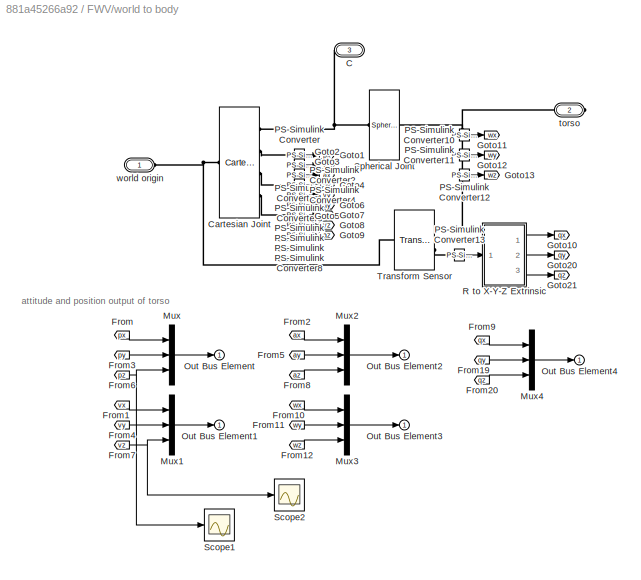
BLOCK [SubSystem] FWV/world to body
  PortSchema = {"entries":[{"content":{"sides":[{"content":{"connectorIds":["LConn1","LConn2"]},"type":"ConnectorPlacement.EquallySpacedRectSide","uuid":"67e08b7d-27a7-478e-aa2b-0a29cfb8c4ba"},{"content":{"connectorIds":["RConn1","Out1"],"side":"RIGHT"},"type":"ConnectorPlacement.EquallySpacedRectSide","uuid":"af848fd7-c404-4734-a34f-7cffff1411b1"},{"content":{"connectorIds":[],"side":"TOP"},"type":"ConnectorPla...<+261ch>
  Ports = [0, 1, 0, 0, 0, 2, 1]
  RequestExecContextInheritance = off
BLOCK [PMIOPort] FWV/world to body/C
  Port = 3
  Side = Left
BLOCK [Reference] FWV/world to body/Cartesian Joint  REF=sm_lib/Joints/Cartesian
Joint
  Ports = [0, 0, 0, 0, 0, 1, 4]
  SourceBlock = sm_lib/Joints/Cartesian\nJoint
  SourceProductBaseCode = MS
  SourceType = Cartesian\nJoint
BLOCK [From] FWV/world to body/From
  GotoTag = px
BLOCK [From] FWV/world to body/From1
  GotoTag = vx
BLOCK [From] FWV/world to body/From10
  GotoTag = wx
BLOCK [From] FWV/world to body/From11
  GotoTag = wy
BLOCK [From] FWV/world to body/From12
  GotoTag = wz
BLOCK [From] FWV/world to body/From19
  GotoTag = qy
BLOCK [From] FWV/world to body/From2
  GotoTag = ax
BLOCK [From] FWV/world to body/From20
  GotoTag = qz
BLOCK [From] FWV/world to body/From3
  GotoTag = py
BLOCK [From] FWV/world to body/From4
  GotoTag = vy
BLOCK [From] FWV/world to body/From5
  GotoTag = ay
BLOCK [From] FWV/world to body/From6
  GotoTag = pz
BLOCK [From] FWV/world to body/From7
  GotoTag = vz
BLOCK [From] FWV/world to body/From8
  GotoTag = az
BLOCK [From] FWV/world to body/From9
  GotoTag = qx
BLOCK [Goto] FWV/world to body/Goto1
  GotoTag = px
BLOCK [Goto] FWV/world to body/Goto10
  GotoTag = qx
BLOCK [Goto] FWV/world to body/Goto11
  GotoTag = wx
BLOCK [Goto] FWV/world to body/Goto12
  GotoTag = wy
BLOCK [Goto] FWV/world to body/Goto13
  GotoTag = wz
BLOCK [Goto] FWV/world to body/Goto2
  GotoTag = vx
BLOCK [Goto] FWV/world to body/Goto20
  GotoTag = qy
BLOCK [Goto] FWV/world to body/Goto21
  GotoTag = qz
BLOCK [Goto] FWV/world to body/Goto3
  GotoTag = ax
BLOCK [Goto] FWV/world to body/Goto4
  GotoTag = py
BLOCK [Goto] FWV/world to body/Goto5
  GotoTag = vy
BLOCK [Goto] FWV/world to body/Goto6
  GotoTag = ay
BLOCK [Goto] FWV/world to body/Goto7
  GotoTag = pz
BLOCK [Goto] FWV/world to body/Goto8
  GotoTag = vz
BLOCK [Goto] FWV/world to body/Goto9
  GotoTag = az
BLOCK [Mux] FWV/world to body/Mux
  DisplayOption = bar
  Inputs = 3
  Ports = [3, 1]
BLOCK [Mux] FWV/world to body/Mux1
  DisplayOption = bar
  Inputs = 3
  Ports = [3, 1]
BLOCK [Mux] FWV/world to body/Mux2
  DisplayOption = bar
  Inputs = 3
  Ports = [3, 1]
BLOCK [Mux] FWV/world to body/Mux3
  DisplayOption = bar
  Inputs = 3
  Ports = [3, 1]
BLOCK [Mux] FWV/world to body/Mux4
  DisplayOption = bar
  Inputs = 3
  Ports = [3, 1]
BLOCK [Outport] FWV/world to body/Out Bus Element
BLOCK [Outport] FWV/world to body/Out Bus Element1
BLOCK [Outport] FWV/world to body/Out Bus Element2
BLOCK [Outport] FWV/world to body/Out Bus Element3
BLOCK [Outport] FWV/world to body/Out Bus Element4
BLOCK [Reference] FWV/world to body/PS-Simulink Converter  REF=nesl_utility/PS-Simulink
Converter
  Ports = [0, 1, 0, 0, 0, 1]
  SourceBlock = nesl_utility/PS-Simulink\nConverter
  SourceProductBaseCode = PW,SS
  SourceType = PS-Simulink\nConverter
BLOCK [Reference] FWV/world to body/PS-Simulink Converter1  REF=nesl_utility/PS-Simulink
Converter
  Ports = [0, 1, 0, 0, 0, 1]
  SourceBlock = nesl_utility/PS-Simulink\nConverter
  SourceProductBaseCode = PW,SS
  SourceType = PS-Simulink\nConverter
BLOCK [Reference] FWV/world to body/PS-Simulink Converter10  REF=nesl_utility/PS-Simulink
Converter
  Ports = [0, 1, 0, 0, 0, 1]
  SourceBlock = nesl_utility/PS-Simulink\nConverter
  SourceProductBaseCode = PW,SS
  SourceType = PS-Simulink\nConverter
BLOCK [Reference] FWV/world to body/PS-Simulink Converter11  REF=nesl_utility/PS-Simulink
Converter
  Ports = [0, 1, 0, 0, 0, 1]
  SourceBlock = nesl_utility/PS-Simulink\nConverter
  SourceProductBaseCode = PW,SS
  SourceType = PS-Simulink\nConverter
BLOCK [Reference] FWV/world to body/PS-Simulink Converter12  REF=nesl_utility/PS-Simulink
Converter
  Ports = [0, 1, 0, 0, 0, 1]
  SourceBlock = nesl_utility/PS-Simulink\nConverter
  SourceProductBaseCode = PW,SS
  SourceType = PS-Simulink\nConverter
BLOCK [Reference] FWV/world to body/PS-Simulink Converter13  REF=nesl_utility/PS-Simulink
Converter
  Ports = [0, 1, 0, 0, 0, 1]
  SourceBlock = nesl_utility/PS-Simulink\nConverter
  SourceProductBaseCode = PW,SS
  SourceType = PS-Simulink\nConverter
BLOCK [Reference] FWV/world to body/PS-Simulink Converter2  REF=nesl_utility/PS-Simulink
Converter
  Ports = [0, 1, 0, 0, 0, 1]
  SourceBlock = nesl_utility/PS-Simulink\nConverter
  SourceProductBaseCode = PW,SS
  SourceType = PS-Simulink\nConverter
BLOCK [Reference] FWV/world to body/PS-Simulink Converter3  REF=nesl_utility/PS-Simulink
Converter
  Ports = [0, 1, 0, 0, 0, 1]
  SourceBlock = nesl_utility/PS-Simulink\nConverter
  SourceProductBaseCode = PW,SS
  SourceType = PS-Simulink\nConverter
BLOCK [Reference] FWV/world to body/PS-Simulink Converter4  REF=nesl_utility/PS-Simulink
Converter
  Ports = [0, 1, 0, 0, 0, 1]
  SourceBlock = nesl_utility/PS-Simulink\nConverter
  SourceProductBaseCode = PW,SS
  SourceType = PS-Simulink\nConverter
BLOCK [Reference] FWV/world to body/PS-Simulink Converter5  REF=nesl_utility/PS-Simulink
Converter
  Ports = [0, 1, 0, 0, 0, 1]
  SourceBlock = nesl_utility/PS-Simulink\nConverter
  SourceProductBaseCode = PW,SS
  SourceType = PS-Simulink\nConverter
BLOCK [Reference] FWV/world to body/PS-Simulink Converter6  REF=nesl_utility/PS-Simulink
Converter
  Ports = [0, 1, 0, 0, 0, 1]
  SourceBlock = nesl_utility/PS-Simulink\nConverter
  SourceProductBaseCode = PW,SS
  SourceType = PS-Simulink\nConverter
BLOCK [Reference] FWV/world to body/PS-Simulink Converter7  REF=nesl_utility/PS-Simulink
Converter
  Ports = [0, 1, 0, 0, 0, 1]
  SourceBlock = nesl_utility/PS-Simulink\nConverter
  SourceProductBaseCode = PW,SS
  SourceType = PS-Simulink\nConverter
BLOCK [Reference] FWV/world to body/PS-Simulink Converter8  REF=nesl_utility/PS-Simulink
Converter
  Ports = [0, 1, 0, 0, 0, 1]
  SourceBlock = nesl_utility/PS-Simulink\nConverter
  SourceProductBaseCode = PW,SS
  SourceType = PS-Simulink\nConverter
BLOCK [SubSystem] FWV/world to body/R to X-Y-Z Extrinsic
  Ports = [1, 3]
  RequestExecContextInheritance = off
BLOCK [Trigonometry] FWV/world to body/R to X-Y-Z Extrinsic/Asin
  Operator = asin
  Ports = [1, 1]
BLOCK [Trigonometry] FWV/world to body/R to X-Y-Z Extrinsic/Atan1
  Operator = atan2
  Ports = [2, 1]
BLOCK [Trigonometry] FWV/world to body/R to X-Y-Z Extrinsic/Atan2
  Operator = atan2
  Ports = [2, 1]
BLOCK [Demux] FWV/world to body/R to X-Y-Z Extrinsic/Demux
  Outputs = 2
  Ports = [1, 2]
BLOCK [Demux] FWV/world to body/R to X-Y-Z Extrinsic/Demux1
  Outputs = 2
  Ports = [1, 2]
BLOCK [Gain] FWV/world to body/R to X-Y-Z Extrinsic/Multiply2
  Gain = -1
BLOCK [Inport] FWV/world to body/R to X-Y-Z Extrinsic/R
BLOCK [Selector] FWV/world to body/R to X-Y-Z Extrinsic/R(3, 1)
  IndexOptions = Index vector (dialog),Index vector (dialog)
  Indices = 3,1
  InputPortWidth = 3
  NumberOfDimensions = 2
  OutputSizes = 1,1
  Ports = [1, 1]
BLOCK [Selector] FWV/world to body/R to X-Y-Z Extrinsic/R(3, 2:3)
  IndexOptions = Index vector (dialog),Index vector (dialog)
  Indices = 3,[2 3]
  InputPortWidth = 3
  NumberOfDimensions = 2
  OutputSizes = 1,1
  Ports = [1, 1]
BLOCK [Selector] FWV/world to body/R to X-Y-Z Extrinsic/R([2 1], 1)
  IndexOptions = Index vector (dialog),Index vector (dialog)
  Indices = [2 1],1
  InputPortWidth = 3
  NumberOfDimensions = 2
  OutputSizes = 1,1
  Ports = [1, 1]
BLOCK [Reshape] FWV/world to body/R to X-Y-Z Extrinsic/Reshape
  Ports = [1, 1]
BLOCK [Reshape] FWV/world to body/R to X-Y-Z Extrinsic/Reshape1
  Ports = [1, 1]
BLOCK [Reshape] FWV/world to body/R to X-Y-Z Extrinsic/Reshape2
  OutputDimensionality = Customize
  OutputDimensions = 1
  Ports = [1, 1]
BLOCK [Outport] FWV/world to body/R to X-Y-Z Extrinsic/pitch
  Port = 2
  VectorParamsAs1DForOutWhenUnconnected = off
BLOCK [Outport] FWV/world to body/R to X-Y-Z Extrinsic/roll
  VectorParamsAs1DForOutWhenUnconnected = off
BLOCK [Outport] FWV/world to body/R to X-Y-Z Extrinsic/yaw
  Port = 3
  VectorParamsAs1DForOutWhenUnconnected = off
BLOCK [Scope] FWV/world to body/Scope1
  Floating = off
  NumInputPorts = 1
  Ports = [1]
  ScopeSpecificationString = Simulink.scopes.TimeScopeBlockCfg('CurrentConfiguration', extmgr.ConfigurationSet(extmgr.Configuration('Core','General UI',true),extmgr.Configuration('Core','Source UI',true),extmgr.Configuration('Sources','WiredSimulink',true,'DataLoggingVariableName','ScopeData1'),extmgr.Configuration('Visuals','Time Domain',true,'SerializedDisplays',{struct('MinYLimReal','-0.76415','MaxYLimReal','6.87612','YLab...<+1452ch>
BLOCK [Scope] FWV/world to body/Scope2
  Floating = off
  NumInputPorts = 1
  Ports = [1]
  ScopeSpecificationString = Simulink.scopes.TimeScopeBlockCfg('CurrentConfiguration', extmgr.ConfigurationSet(extmgr.Configuration('Core','General UI',true),extmgr.Configuration('Core','Source UI',true),extmgr.Configuration('Sources','WiredSimulink',true,'DataLoggingVariableName','ScopeData1'),extmgr.Configuration('Visuals','Time Domain',true,'SerializedDisplays',{struct('MinYLimReal','-19.93937','MaxYLimReal','19.82069','YL...<+1493ch>
BLOCK [Reference] FWV/world to body/Spherical Joint  REF=sm_lib/Joints/Spherical
Joint
  Ports = [0, 0, 0, 0, 0, 1, 1]
  SourceBlock = sm_lib/Joints/Spherical\nJoint
  SourceProductBaseCode = MS
  SourceType = Spherical\nJoint
BLOCK [Reference] FWV/world to body/Transform Sensor  REF=sm_lib/Frames and
Transforms/Transform
Sensor
  Ports = [0, 0, 0, 0, 0, 1, 2]
  SourceBlock = sm_lib/Frames and\nTransforms/Transform\nSensor
  SourceProductBaseCode = MS
  SourceType = Transform\nSensor
BLOCK [PMIOPort] FWV/world to body/torso
  Port = 2
  Side = Right
BLOCK [PMIOPort] FWV/world to body/world origin
  Side = Left
BLOCK [SubSystem] Ref
  Ports = [0, 1]
  RequestExecContextInheritance = off
BLOCK [BusCreator] Ref/Bus Creator
  DisplayOption = bar
  InheritFromInputs = on
  Inputs = 2
  Ports = [2, 1]
BLOCK [Mux] Ref/Mux
  DisplayOption = bar
  Inputs = 3
  Ports = [3, 1]
BLOCK [Mux] Ref/Mux1
  DisplayOption = bar
  Inputs = 3
  Ports = [3, 1]
BLOCK [Step] Ref/pitch
  After = 2
  SampleTime = 0
  Time = 0
  ZeroCross = off
BLOCK [Step] Ref/roll
  After = 0
  SampleTime = 0
  Time = 0
  ZeroCross = off
BLOCK [Outport] Ref/traj
BLOCK [Step] Ref/xd
  After = 5
  SampleTime = 0
  Time = 0
  ZeroCross = off
BLOCK [Step] Ref/yaw
  After = 0
  SampleTime = 0
  Time = 0
  ZeroCross = off
BLOCK [Step] Ref/yd
  SampleTime = 0
  Time = 0
  ZeroCross = off
BLOCK [Constant] Ref/zd
  Value = 2
ANNOTATION FWV/TORSO MECH: Contact Measurement
ANNOTATION FWV/world to body: attitude and position output of torso
ANNOTATION FWV/world to body/R to X-Y-Z Extrinsic: The sensor implemented here computes roll / pitch / yaw values assuming they correpsond to X, Y, and Z rotations, applied in that order and using *extrinsic* rotations. That is, the rotations are applied about the fixed (non-rotated) axes of the base frame. There are many other possible conventions, but the computations of angles has the same basic structure for any of them. The only differences w...<+349ch>
LINE Controller/Bus Element In1:1 -> Controller/Sum:1
NET Controller/Bus Element In2:1 -> Controller/Subsystem:1, Controller/rad2deg:1
LINE Controller/Bus Selector:1 -> Controller/Sum:2
LINE Controller/Bus Selector:2 -> Controller/Subsystem:3
LINE Controller/Demux:1 -> Controller/Out Bus Element1:1
LINE Controller/Demux:2 -> Controller/Out Bus Element2:1
LINE Controller/Demux:3 -> Controller/Out Bus Element3:1
LINE Controller/Subsystem/Inner PID/Demux:1 -> Controller/Subsystem/Inner PID/PID Controller3:1
LINE Controller/Subsystem/Inner PID/Demux:2 -> Controller/Subsystem/Inner PID/PID Controller1:1
LINE Controller/Subsystem/Inner PID/Demux:3 -> Controller/Subsystem/Inner PID/PID Controller2:1
LINE Controller/Subsystem/Inner PID/Mux:1 -> Controller/Subsystem/Inner PID/tau_d:1
LINE Controller/Subsystem/Inner PID/PID Controller1:1 -> Controller/Subsystem/Inner PID/Mux:2
LINE Controller/Subsystem/Inner PID/PID Controller2:1 -> Controller/Subsystem/Inner PID/Mux:3
LINE Controller/Subsystem/Inner PID/PID Controller3:1 -> Controller/Subsystem/Inner PID/Mux:1
LINE Controller/Subsystem/Inner PID/eeta:1 -> Controller/Subsystem/Inner PID/Demux:1
LINE Controller/Subsystem/Inner PID:1 -> Controller/Subsystem/tau_d:1
LINE Controller/Subsystem/Outer PID/Demux:1 -> Controller/Subsystem/Outer PID/Discrete PID Controller:1
LINE Controller/Subsystem/Outer PID/Demux:2 -> Controller/Subsystem/Outer PID/Discrete PID Controller1:1
LINE Controller/Subsystem/Outer PID/Demux:3 -> Controller/Subsystem/Outer PID/PID Controller1:1
LINE Controller/Subsystem/Outer PID/Discrete PID Controller1:1 -> Controller/Subsystem/Outer PID/muy:1
LINE Controller/Subsystem/Outer PID/Discrete PID Controller:1 -> Controller/Subsystem/Outer PID/mux:1
LINE Controller/Subsystem/Outer PID/In1:1 -> Controller/Subsystem/Outer PID/Demux:1
LINE Controller/Subsystem/Outer PID/PID Controller1:1 -> Controller/Subsystem/Outer PID/muz:1
LINE Controller/Subsystem/Outer PID/y PID1/Constant1:1 -> Controller/Subsystem/Outer PID/y PID1/Mux1:2
LINE Controller/Subsystem/Outer PID/y PID1/Constant2:1 -> Controller/Subsystem/Outer PID/y PID1/Mux1:3
LINE Controller/Subsystem/Outer PID/y PID1/Constant:1 -> Controller/Subsystem/Outer PID/y PID1/Mux1:1
LINE Controller/Subsystem/Outer PID/y PID1/Derivative:1 -> Controller/Subsystem/Outer PID/y PID1/Mux:3
LINE Controller/Subsystem/Outer PID/y PID1/Dot Product:1 -> Controller/Subsystem/Outer PID/y PID1/Out1:1
NET Controller/Subsystem/Outer PID/y PID1/In1:1 -> Controller/Subsystem/Outer PID/y PID1/Derivative:1, Controller/Subsystem/Outer PID/y PID1/Integrator Limited:1, Controller/Subsystem/Outer PID/y PID1/Mux:1
LINE Controller/Subsystem/Outer PID/y PID1/Integrator Limited:1 -> Controller/Subsystem/Outer PID/y PID1/Mux:2
LINE Controller/Subsystem/Outer PID/y PID1/Mux1:1 -> Controller/Subsystem/Outer PID/y PID1/Dot Product:1
LINE Controller/Subsystem/Outer PID/y PID1/Mux:1 -> Controller/Subsystem/Outer PID/y PID1/Dot Product:2
LINE Controller/Subsystem/Outer PID/z PID/Constant1:1 -> Controller/Subsystem/Outer PID/z PID/Mux1:2
LINE Controller/Subsystem/Outer PID/z PID/Constant2:1 -> Controller/Subsystem/Outer PID/z PID/Mux1:3
LINE Controller/Subsystem/Outer PID/z PID/Constant:1 -> Controller/Subsystem/Outer PID/z PID/Mux1:1
LINE Controller/Subsystem/Outer PID/z PID/Dot Product:1 -> Controller/Subsystem/Outer PID/z PID/Out1:1
NET Controller/Subsystem/Outer PID/z PID/In1:1 -> Controller/Subsystem/Outer PID/z PID/Integrator Limited:1, Controller/Subsystem/Outer PID/z PID/Mux:1
LINE Controller/Subsystem/Outer PID/z PID/Integrator Limited:1 -> Controller/Subsystem/Outer PID/z PID/Mux:2
LINE Controller/Subsystem/Outer PID/z PID/Mux1:1 -> Controller/Subsystem/Outer PID/z PID/Dot Product:1
LINE Controller/Subsystem/Outer PID/z PID/Mux:1 -> Controller/Subsystem/Outer PID/z PID/Dot Product:2
LINE Controller/Subsystem/Outer PID:1 -> Controller/Subsystem/inner-outer convertion:1
LINE Controller/Subsystem/Outer PID:2 -> Controller/Subsystem/inner-outer convertion:2
NET Controller/Subsystem/Outer PID:3 -> Controller/Subsystem/inner-outer convertion:3, Controller/Subsystem/ufd:1
NET Controller/Subsystem/Saturation:1 -> Controller/Subsystem/Sum1:2, Controller/Subsystem/rad2deg:1
LINE Controller/Subsystem/Selector:1 -> Controller/Subsystem/inner-outer convertion:4
LINE Controller/Subsystem/Sum1:1 -> Controller/Subsystem/Inner PID:1
LINE Controller/Subsystem/inner-outer convertion:1 -> Controller/Subsystem/Saturation:1
LINE Controller/Subsystem/pe:1 -> Controller/Subsystem/Outer PID:1
LINE Controller/Subsystem/q:1 -> Controller/Subsystem/Sum1:1
LINE Controller/Subsystem/qd:1 -> Controller/Subsystem/Selector:1
LINE Controller/Subsystem/rad2deg:1 -> Controller/Subsystem/Terminator:1
LINE Controller/Subsystem:1 -> Controller/Demux:1
LINE Controller/Subsystem:2 -> Controller/Out Bus Element:1
LINE Controller/Sum:1 -> Controller/Subsystem:2
LINE Controller/Traj:1 -> Controller/Bus Selector:1
LINE Controller/rad2deg:1 -> Controller/Terminator:1
LINE Controller:1 -> FWV:1
LINE FWV/Acuator/ left flap:1 -> FWV/Acuator/Out Bus Element:1
LINE FWV/Acuator/ right flap:1 -> FWV/Acuator/Out Bus Element2:1
NET FWV/Acuator/1-D Lookup Table:1 -> FWV/Acuator/ left flap:3, FWV/Acuator/ right flap:3
LINE FWV/Acuator/Add1:1 -> FWV/Acuator/Saturation1:1
LINE FWV/Acuator/Add:1 -> FWV/Acuator/Saturation:1
LINE FWV/Acuator/Bus Element In1:1 -> FWV/Acuator/Transfer Fcn1:1
LINE FWV/Acuator/Bus Element In2:1 -> FWV/Acuator/Transfer Fcn3:1
LINE FWV/Acuator/Bus Element In3:1 -> FWV/Acuator/Transfer Fcn2:1
LINE FWV/Acuator/Bus Element In:1 -> FWV/Acuator/Transfer Fcn:1
NET FWV/Acuator/Clock:1 -> FWV/Acuator/ left flap:1, FWV/Acuator/ right flap:1, FWV/Acuator/To Workspace:1
NET FWV/Acuator/One:1 -> FWV/Acuator/ left flap:4, FWV/Acuator/ right flap:4
LINE FWV/Acuator/Saturation1:1 -> FWV/Acuator/ right flap:2
LINE FWV/Acuator/Saturation:1 -> FWV/Acuator/ left flap:2
NET FWV/Acuator/Transfer Fcn1:1 -> FWV/Acuator/ left flap:5, FWV/Acuator/ right flap:5
NET FWV/Acuator/Transfer Fcn2:1 -> FWV/Acuator/Add1:1, FWV/Acuator/Add:1
LINE FWV/Acuator/Transfer Fcn3:1 -> FWV/Acuator/1-D Lookup Table:1
NET FWV/Acuator/Transfer Fcn:1 -> FWV/Acuator/Add1:2, FWV/Acuator/Add:2
LINE FWV/Acuator:1 -> FWV/Simulink-PS Converter7:1
LINE FWV/Acuator:2 -> FWV/Simulink-PS Converter3:1
LINE FWV/LEFT LE/From13:1 -> FWV/LEFT LE/Out Bus Element5:1
LINE FWV/LEFT LE/From17:1 -> FWV/LEFT LE/Out Bus Element6:1
LINE FWV/LEFT LE/PS-Simulink Converter13:1 -> FWV/LEFT LE/Goto14:1
LINE FWV/LEFT LE/PS-Simulink Converter17:1 -> FWV/LEFT LE/Goto18:1
LINE FWV/LEFT LE:1 -> FWV/Out Bus Element3:1
LINE FWV/LEFT WING/AoA:1 -> FWV/LEFT WING/left aero force and moment:2
LINE FWV/LEFT WING/Constant:1 -> FWV/LEFT WING/Goto:1
NET FWV/LEFT WING/From14:1 -> FWV/LEFT WING/AoA:2, FWV/LEFT WING/Out Bus Element7:1
LINE FWV/LEFT WING/From1:1 -> FWV/LEFT WING/Out Bus Element2:1
LINE FWV/LEFT WING/From2:1 -> FWV/LEFT WING/Simulink-PS Converter3:1
LINE FWV/LEFT WING/From3:1 -> FWV/LEFT WING/Simulink-PS Converter2:1
LINE FWV/LEFT WING/From4:1 -> FWV/LEFT WING/Simulink-PS Converter1:1
LINE FWV/LEFT WING/From5:1 -> FWV/LEFT WING/Simulink-PS Converter:1
NET FWV/LEFT WING/From:1 -> FWV/LEFT WING/Out Bus Element1:1, FWV/LEFT WING/left aero force and moment:3
LINE FWV/LEFT WING/PS-Simulink Converter14:1 -> FWV/LEFT WING/Goto15:1
LINE FWV/LEFT WING/PS-Simulink Converter1:1 -> FWV/LEFT WING/Goto1:1
LINE FWV/LEFT WING/PS-Simulink Converter2:1 -> FWV/LEFT WING/Goto2:1
LINE FWV/LEFT WING/Subsystem1/Gain:1 -> FWV/LEFT WING/Subsystem1/Mux:2
LINE FWV/LEFT WING/Subsystem1/Mux:1 -> FWV/LEFT WING/Subsystem1/le0:1
LINE FWV/LEFT WING/Subsystem1/PS-Simulink Converter1:1 -> FWV/LEFT WING/Subsystem1/Mux:3
LINE FWV/LEFT WING/Subsystem1/PS-Simulink Converter2:1 -> FWV/LEFT WING/Subsystem1/Mux:1
LINE FWV/LEFT WING/Subsystem1/PS-Simulink Converter3:1 -> FWV/LEFT WING/Subsystem1/Gain:1
LINE FWV/LEFT WING/Subsystem1/PS-Simulink Converter:1 -> FWV/LEFT WING/Subsystem1/Mux:4
NET FWV/LEFT WING/Subsystem1:1 -> FWV/LEFT WING/AoA:1, FWV/LEFT WING/left aero force and moment:1
LINE FWV/LEFT WING/Unit Delay:1 -> FWV/LEFT WING/Goto3:1
LINE FWV/LEFT WING/left aero force and moment:1 -> FWV/LEFT WING/Goto5:1
LINE FWV/LEFT WING/left aero force and moment:2 -> FWV/LEFT WING/Goto4:1
LINE FWV/LEFT WING/left aero force and moment:3 -> FWV/LEFT WING/Unit Delay:1
LINE FWV/LEFT WING:1 -> FWV/Out Bus Element1:1
LINE FWV/RIGHT LE/From15:1 -> FWV/RIGHT LE/Out Bus Element8:1
LINE FWV/RIGHT LE/From18:1 -> FWV/RIGHT LE/Out Bus Element9:1
LINE FWV/RIGHT LE/PS-Simulink Converter16:1 -> FWV/RIGHT LE/Goto17:1
LINE FWV/RIGHT LE/PS-Simulink Converter18:1 -> FWV/RIGHT LE/Goto19:1
LINE FWV/RIGHT LE/PS-Simulink Converter2:1 -> FWV/RIGHT LE/Scope:1
LINE FWV/RIGHT LE:1 -> FWV/Out Bus Element4:1
LINE FWV/RIGHT WING/AoA1:1 -> FWV/RIGHT WING/right aero force and moment:2
LINE FWV/RIGHT WING/Constant:1 -> FWV/RIGHT WING/Goto:1
NET FWV/RIGHT WING/From16:1 -> FWV/RIGHT WING/AoA1:2, FWV/RIGHT WING/Out Bus Element10:1
LINE FWV/RIGHT WING/From1:1 -> FWV/RIGHT WING/Simulink-PS Converter:1
LINE FWV/RIGHT WING/From2:1 -> FWV/RIGHT WING/Simulink-PS Converter1:1
LINE FWV/RIGHT WING/From3:1 -> FWV/RIGHT WING/Simulink-PS Converter2:1
LINE FWV/RIGHT WING/From4:1 -> FWV/RIGHT WING/Simulink-PS Converter3:1
NET FWV/RIGHT WING/From:1 -> FWV/RIGHT WING/Out Bus Element1:1, FWV/RIGHT WING/right aero force and moment:3
LINE FWV/RIGHT WING/PS-Simulink Converter15:1 -> FWV/RIGHT WING/Goto16:1
LINE FWV/RIGHT WING/PS-Simulink Converter1:1 -> FWV/RIGHT WING/Goto1:1
LINE FWV/RIGHT WING/Subsystem1/Gain:1 -> FWV/RIGHT WING/Subsystem1/Mux:2
LINE FWV/RIGHT WING/Subsystem1/Mux:1 -> FWV/RIGHT WING/Subsystem1/le0:1
LINE FWV/RIGHT WING/Subsystem1/PS-Simulink Converter1:1 -> FWV/RIGHT WING/Subsystem1/Mux:3
LINE FWV/RIGHT WING/Subsystem1/PS-Simulink Converter2:1 -> FWV/RIGHT WING/Subsystem1/Mux:1
LINE FWV/RIGHT WING/Subsystem1/PS-Simulink Converter3:1 -> FWV/RIGHT WING/Subsystem1/Gain:1
LINE FWV/RIGHT WING/Subsystem1/PS-Simulink Converter:1 -> FWV/RIGHT WING/Subsystem1/Mux:4
NET FWV/RIGHT WING/Subsystem1:1 -> FWV/RIGHT WING/AoA1:1, FWV/RIGHT WING/right aero force and moment:1
LINE FWV/RIGHT WING/Unit Delay1:1 -> FWV/RIGHT WING/Goto3:1
LINE FWV/RIGHT WING/right aero force and moment:1 -> FWV/RIGHT WING/Goto5:1
LINE FWV/RIGHT WING/right aero force and moment:2 -> FWV/RIGHT WING/Goto4:1
LINE FWV/RIGHT WING/right aero force and moment:3 -> FWV/RIGHT WING/Unit Delay1:1
LINE FWV/RIGHT WING:1 -> FWV/Out Bus Element2:1
LINE FWV/ctrl:1 -> FWV/Acuator:1
LINE FWV/world to body/From10:1 -> FWV/world to body/Mux3:1
LINE FWV/world to body/From11:1 -> FWV/world to body/Mux3:2
LINE FWV/world to body/From12:1 -> FWV/world to body/Mux3:3
LINE FWV/world to body/From19:1 -> FWV/world to body/Mux4:2
LINE FWV/world to body/From1:1 -> FWV/world to body/Mux1:1
LINE FWV/world to body/From20:1 -> FWV/world to body/Mux4:3
LINE FWV/world to body/From2:1 -> FWV/world to body/Mux2:1
LINE FWV/world to body/From3:1 -> FWV/world to body/Mux:2
LINE FWV/world to body/From4:1 -> FWV/world to body/Mux1:2
LINE FWV/world to body/From5:1 -> FWV/world to body/Mux2:2
NET FWV/world to body/From6:1 -> FWV/world to body/Mux:3, FWV/world to body/Scope1:1
NET FWV/world to body/From7:1 -> FWV/world to body/Mux1:3, FWV/world to body/Scope2:1
LINE FWV/world to body/From8:1 -> FWV/world to body/Mux2:3
LINE FWV/world to body/From9:1 -> FWV/world to body/Mux4:1
LINE FWV/world to body/From:1 -> FWV/world to body/Mux:1
LINE FWV/world to body/Mux1:1 -> FWV/world to body/Out Bus Element1:1
LINE FWV/world to body/Mux2:1 -> FWV/world to body/Out Bus Element2:1
LINE FWV/world to body/Mux3:1 -> FWV/world to body/Out Bus Element3:1
LINE FWV/world to body/Mux4:1 -> FWV/world to body/Out Bus Element4:1
LINE FWV/world to body/Mux:1 -> FWV/world to body/Out Bus Element:1
LINE FWV/world to body/PS-Simulink Converter10:1 -> FWV/world to body/Goto11:1
LINE FWV/world to body/PS-Simulink Converter11:1 -> FWV/world to body/Goto12:1
LINE FWV/world to body/PS-Simulink Converter12:1 -> FWV/world to body/Goto13:1
LINE FWV/world to body/PS-Simulink Converter13:1 -> FWV/world to body/R to X-Y-Z Extrinsic:1
LINE FWV/world to body/PS-Simulink Converter1:1 -> FWV/world to body/Goto2:1
LINE FWV/world to body/PS-Simulink Converter2:1 -> FWV/world to body/Goto3:1
LINE FWV/world to body/PS-Simulink Converter3:1 -> FWV/world to body/Goto4:1
LINE FWV/world to body/PS-Simulink Converter4:1 -> FWV/world to body/Goto5:1
LINE FWV/world to body/PS-Simulink Converter5:1 -> FWV/world to body/Goto6:1
LINE FWV/world to body/PS-Simulink Converter6:1 -> FWV/world to body/Goto7:1
LINE FWV/world to body/PS-Simulink Converter7:1 -> FWV/world to body/Goto8:1
LINE FWV/world to body/PS-Simulink Converter8:1 -> FWV/world to body/Goto9:1
LINE FWV/world to body/PS-Simulink Converter:1 -> FWV/world to body/Goto1:1
LINE FWV/world to body/R to X-Y-Z Extrinsic/Asin:1 -> FWV/world to body/R to X-Y-Z Extrinsic/Reshape1:1
LINE FWV/world to body/R to X-Y-Z Extrinsic/Atan1:1 -> FWV/world to body/R to X-Y-Z Extrinsic/Reshape:1
LINE FWV/world to body/R to X-Y-Z Extrinsic/Atan2:1 -> FWV/world to body/R to X-Y-Z Extrinsic/Reshape2:1
LINE FWV/world to body/R to X-Y-Z Extrinsic/Demux1:1 -> FWV/world to body/R to X-Y-Z Extrinsic/Atan1:1
LINE FWV/world to body/R to X-Y-Z Extrinsic/Demux1:2 -> FWV/world to body/R to X-Y-Z Extrinsic/Atan1:2
LINE FWV/world to body/R to X-Y-Z Extrinsic/Demux:1 -> FWV/world to body/R to X-Y-Z Extrinsic/Atan2:1
LINE FWV/world to body/R to X-Y-Z Extrinsic/Demux:2 -> FWV/world to body/R to X-Y-Z Extrinsic/Atan2:2
LINE FWV/world to body/R to X-Y-Z Extrinsic/Multiply2:1 -> FWV/world to body/R to X-Y-Z Extrinsic/Asin:1
LINE FWV/world to body/R to X-Y-Z Extrinsic/R(3, 1):1 -> FWV/world to body/R to X-Y-Z Extrinsic/Multiply2:1
LINE FWV/world to body/R to X-Y-Z Extrinsic/R(3, 2:3):1 -> FWV/world to body/R to X-Y-Z Extrinsic/Demux:1
LINE FWV/world to body/R to X-Y-Z Extrinsic/R([2 1], 1):1 -> FWV/world to body/R to X-Y-Z Extrinsic/Demux1:1
NET FWV/world to body/R to X-Y-Z Extrinsic/R:1 -> FWV/world to body/R to X-Y-Z Extrinsic/R(3, 1):1, FWV/world to body/R to X-Y-Z Extrinsic/R(3, 2:3):1, FWV/world to body/R to X-Y-Z Extrinsic/R([2 1], 1):1
LINE FWV/world to body/R to X-Y-Z Extrinsic/Reshape1:1 -> FWV/world to body/R to X-Y-Z Extrinsic/pitch:1
LINE FWV/world to body/R to X-Y-Z Extrinsic/Reshape2:1 -> FWV/world to body/R to X-Y-Z Extrinsic/roll:1
LINE FWV/world to body/R to X-Y-Z Extrinsic/Reshape:1 -> FWV/world to body/R to X-Y-Z Extrinsic/yaw:1
LINE FWV/world to body/R to X-Y-Z Extrinsic:1 -> FWV/world to body/Goto10:1
LINE FWV/world to body/R to X-Y-Z Extrinsic:2 -> FWV/world to body/Goto20:1
LINE FWV/world to body/R to X-Y-Z Extrinsic:3 -> FWV/world to body/Goto21:1
LINE FWV/world to body:1 -> FWV/Out Bus Element:1
LINE FWV:1 -> Controller:1
LINE Ref/Bus Creator:1 -> Ref/traj:1
LINE Ref/Mux1:1 -> Ref/Bus Creator:2
LINE Ref/Mux:1 -> Ref/Bus Creator:1
LINE Ref/pitch:1 -> Ref/Mux1:2
LINE Ref/roll:1 -> Ref/Mux1:1
LINE Ref/xd:1 -> Ref/Mux:1
LINE Ref/yaw:1 -> Ref/Mux1:3
LINE Ref/yd:1 -> Ref/Mux:2
LINE Ref/zd:1 -> Ref/Mux:3
LINE Ref:1 -> Controller:2
PLINE FWV/Connection Label1:LConn1 -- FWV/LEFT WING:RConn1
PLINE FWV/Connection Label2:LConn1 -- FWV/LEFT WING:LConn1
PNET net1: FWV/Connection Label3:LConn1 -- FWV/Ground:LConn1 -- FWV/Mechanism Configuration:RConn1 -- FWV/Solver Configuration:RConn1 -- FWV/World Frame1:RConn1 -- FWV/world to body:LConn1
PLINE FWV/Connection Label4:LConn1 -- FWV/RIGHT WING:LConn1
PLINE FWV/Connection Label:LConn1 -- FWV/RIGHT WING:RConn1
PLINE FWV/Ground/Cylindrical Solid:LConn1 -- FWV/Ground/Rigid Transform:RConn1
PLINE FWV/Ground/Cylindrical Solid:RConn1 -- FWV/Ground/G:RConn1
PLINE FWV/Ground/Rigid Transform:LConn1 -- FWV/Ground/W:RConn1
PLINE FWV/Ground:RConn1 -- FWV/TORSO MECH:RConn2
PLINE FWV/LEFT LE/LT:RConn1 -- FWV/LEFT LE/Stroke Joint:LConn1
PNET net2: FWV/LEFT LE/Left LE1:RConn1 -- FWV/LEFT LE/Stroke Joint:RConn1 -- FWV/LEFT LE/left Shoulder:LConn1
PLINE FWV/LEFT LE/PS-Simulink Converter13:LConn1 -- FWV/LEFT LE/Stroke Joint:RConn2
PLINE FWV/LEFT LE/PS-Simulink Converter17:LConn1 -- FWV/LEFT LE/Stroke Joint:RConn3
PLINE FWV/LEFT LE/Stroke Joint:LConn2 -- FWV/LEFT LE/t of Left Stroke:RConn1
PLINE FWV/LEFT LE/WT:RConn1 -- FWV/LEFT LE/left Shoulder:RConn1
PLINE FWV/LEFT LE:LConn1 -- FWV/Simulink-PS Converter3:RConn1
PLINE FWV/LEFT LE:LConn2 -- FWV/TORSO MECH:RConn1
PLINE FWV/LEFT LE:RConn1 -- FWV/LEFT WING:LConn2
PNET net3: FWV/LEFT WING/CP:RConn1 -- FWV/LEFT WING/External Force and Torque:RConn1 -- FWV/LEFT WING/Graphic:RConn1 -- FWV/LEFT WING/Rectangular Joint:RConn1
PLINE FWV/LEFT WING/External Force and Torque1:LConn1 -- FWV/LEFT WING/Simulink-PS Converter1:RConn1
PNET net4: FWV/LEFT WING/External Force and Torque1:RConn1 -- FWV/LEFT WING/Revolute Joint:RConn1 -- FWV/LEFT WING/xy in plane:LConn1
PLINE FWV/LEFT WING/External Force and Torque:LConn2 -- FWV/LEFT WING/Simulink-PS Converter:RConn1
PNET net5: FWV/LEFT WING/Left Wing:RConn1 -- FWV/LEFT WING/Rectangular Joint:LConn1 -- FWV/LEFT WING/xy in plane:RConn1
PLINE FWV/LEFT WING/PS-Simulink Converter14:LConn1 -- FWV/LEFT WING/Revolute Joint:RConn2
PLINE FWV/LEFT WING/PS-Simulink Converter1:LConn1 -- FWV/LEFT WING/Revolute Joint:RConn3
PLINE FWV/LEFT WING/PS-Simulink Converter2:LConn1 -- FWV/LEFT WING/Revolute Joint:RConn4
PLINE FWV/LEFT WING/Rectangular Joint:LConn2 -- FWV/LEFT WING/Simulink-PS Converter3:RConn1
PLINE FWV/LEFT WING/Rectangular Joint:LConn3 -- FWV/LEFT WING/Simulink-PS Converter2:RConn1
PNET net6: FWV/LEFT WING/Revolute Joint:LConn1 -- FWV/LEFT WING/Subsystem1:LConn2 -- FWV/LEFT WING/WT:RConn1
PLINE FWV/LEFT WING/Subsystem1/LWing-root in world:LConn1 -- FWV/LEFT WING/Subsystem1/W:RConn1
PLINE FWV/LEFT WING/Subsystem1/LWing-root in world:RConn1 -- FWV/LEFT WING/Subsystem1/WT:RConn1
PLINE FWV/LEFT WING/Subsystem1/LWing-root in world:RConn2 -- FWV/LEFT WING/Subsystem1/PS-Simulink Converter:LConn1
PLINE FWV/LEFT WING/Subsystem1/LWing-root in world:RConn3 -- FWV/LEFT WING/Subsystem1/PS-Simulink Converter1:LConn1
PLINE FWV/LEFT WING/Subsystem1/LWing-root in world:RConn4 -- FWV/LEFT WING/Subsystem1/PS-Simulink Converter2:LConn1
PLINE FWV/LEFT WING/Subsystem1/LWing-root in world:RConn5 -- FWV/LEFT WING/Subsystem1/PS-Simulink Converter3:LConn1
PLINE FWV/LEFT WING/Subsystem1:LConn1 -- FWV/LEFT WING/W:RConn1
PLINE FWV/RIGHT LE/PS-Simulink Converter16:LConn1 -- FWV/RIGHT LE/Stroke Joint1:RConn2
PLINE FWV/RIGHT LE/PS-Simulink Converter18:LConn1 -- FWV/RIGHT LE/Stroke Joint1:RConn3
PLINE FWV/RIGHT LE/PS-Simulink Converter2:LConn1 -- FWV/RIGHT LE/Stroke Joint1:RConn4
PLINE FWV/RIGHT LE/RT:RConn1 -- FWV/RIGHT LE/Stroke Joint1:LConn1
PNET net7: FWV/RIGHT LE/Right LE1:RConn1 -- FWV/RIGHT LE/Right Shoulder1:RConn1 -- FWV/RIGHT LE/Right Shoulder:LConn1
PLINE FWV/RIGHT LE/Right Shoulder1:LConn1 -- FWV/RIGHT LE/Stroke Joint1:RConn1
PLINE FWV/RIGHT LE/Right Shoulder:RConn1 -- FWV/RIGHT LE/WT:RConn1
PLINE FWV/RIGHT LE/Stroke Joint1:LConn2 -- FWV/RIGHT LE/t of Right Stroke:RConn1
PLINE FWV/RIGHT LE:LConn1 -- FWV/RIGHT WING:LConn2
PLINE FWV/RIGHT LE:RConn1 -- FWV/Simulink-PS Converter7:RConn1
PLINE FWV/RIGHT LE:RConn2 -- FWV/TORSO MECH:LConn1
PNET net8: FWV/RIGHT WING/CP:RConn1 -- FWV/RIGHT WING/External Force and Torque:RConn1 -- FWV/RIGHT WING/Graphic:RConn1 -- FWV/RIGHT WING/Rectangular Joint:RConn1
PLINE FWV/RIGHT WING/External Force and Torque1:LConn1 -- FWV/RIGHT WING/Simulink-PS Converter1:RConn1
PNET net9: FWV/RIGHT WING/External Force and Torque1:RConn1 -- FWV/RIGHT WING/Revolute Joint:RConn1 -- FWV/RIGHT WING/xy in plane:LConn1
PLINE FWV/RIGHT WING/External Force and Torque:LConn2 -- FWV/RIGHT WING/Simulink-PS Converter:RConn1
PLINE FWV/RIGHT WING/PS-Simulink Converter15:LConn1 -- FWV/RIGHT WING/Revolute Joint:RConn2
PLINE FWV/RIGHT WING/PS-Simulink Converter1:LConn1 -- FWV/RIGHT WING/Revolute Joint:RConn3
PNET net10: FWV/RIGHT WING/Rectangular Joint:LConn1 -- FWV/RIGHT WING/Right Wing:RConn1 -- FWV/RIGHT WING/xy in plane:RConn1
PLINE FWV/RIGHT WING/Rectangular Joint:LConn2 -- FWV/RIGHT WING/Simulink-PS Converter3:RConn1
PLINE FWV/RIGHT WING/Rectangular Joint:LConn3 -- FWV/RIGHT WING/Simulink-PS Converter2:RConn1
PNET net11: FWV/RIGHT WING/Revolute Joint:LConn1 -- FWV/RIGHT WING/Subsystem1:LConn2 -- FWV/RIGHT WING/WT:RConn1
PLINE FWV/RIGHT WING/Subsystem1/LWing-root in world:LConn1 -- FWV/RIGHT WING/Subsystem1/W:RConn1
PLINE FWV/RIGHT WING/Subsystem1/LWing-root in world:RConn1 -- FWV/RIGHT WING/Subsystem1/WT:RConn1
PLINE FWV/RIGHT WING/Subsystem1/LWing-root in world:RConn2 -- FWV/RIGHT WING/Subsystem1/PS-Simulink Converter:LConn1
PLINE FWV/RIGHT WING/Subsystem1/LWing-root in world:RConn3 -- FWV/RIGHT WING/Subsystem1/PS-Simulink Converter1:LConn1
PLINE FWV/RIGHT WING/Subsystem1/LWing-root in world:RConn4 -- FWV/RIGHT WING/Subsystem1/PS-Simulink Converter2:LConn1
PLINE FWV/RIGHT WING/Subsystem1/LWing-root in world:RConn5 -- FWV/RIGHT WING/Subsystem1/PS-Simulink Converter3:LConn1
PLINE FWV/RIGHT WING/Subsystem1:LConn1 -- FWV/RIGHT WING/W:RConn1
PLINE FWV/TORSO MECH/F1:RConn1 -- FWV/TORSO MECH/left_edge_of_torso:RConn1
PLINE FWV/TORSO MECH/F2:RConn1 -- FWV/TORSO MECH/right_edge_of_torso:RConn1
PNET net12: FWV/TORSO MECH/G:RConn1 -- FWV/TORSO MECH/Spatial Contact Force1:LConn1 -- FWV/TORSO MECH/Spatial Contact Force2:LConn1 -- FWV/TORSO MECH/Spatial Contact Force3:LConn1 -- FWV/TORSO MECH/Spatial Contact Force4:LConn1 -- FWV/TORSO MECH/Spatial Contact Force:LConn1
PNET net13: FWV/TORSO MECH/Rigid Transform1:LConn1 -- FWV/TORSO MECH/Rigid Transform:LConn1 -- FWV/TORSO MECH/TS:RConn1 -- FWV/TORSO MECH/left_edge_of_torso:LConn1 -- FWV/TORSO MECH/right_edge_of_torso:LConn1 -- FWV/TORSO MECH/torso:RConn1
PNET net14: FWV/TORSO MECH/Rigid Transform1:RConn1 -- FWV/TORSO MECH/foot3:RConn1 -- FWV/TORSO MECH/leg1:RConn1
PLINE FWV/TORSO MECH/Rigid Transform:RConn1 -- FWV/TORSO MECH/leg:RConn1
PLINE FWV/TORSO MECH/Spatial Contact Force1:RConn1 -- FWV/TORSO MECH/foot2:LConn1
PLINE FWV/TORSO MECH/Spatial Contact Force2:RConn1 -- FWV/TORSO MECH/foot3:LConn1
PLINE FWV/TORSO MECH/Spatial Contact Force3:RConn1 -- FWV/TORSO MECH/foot4:LConn1
PLINE FWV/TORSO MECH/Spatial Contact Force4:RConn1 -- FWV/TORSO MECH/foot5:LConn1
PLINE FWV/TORSO MECH/Spatial Contact Force:RConn1 -- FWV/TORSO MECH/foot1:LConn1
PLINE FWV/TORSO MECH/foot1:RConn1 -- FWV/TORSO MECH/leg:LConn1
PLINE FWV/TORSO MECH/foot2:RConn1 -- FWV/TORSO MECH/leg:LConn2
PLINE FWV/TORSO MECH/foot4:RConn1 -- FWV/TORSO MECH/leg1:LConn1
PLINE FWV/TORSO MECH/foot5:RConn1 -- FWV/TORSO MECH/leg1:LConn2
PLINE FWV/TORSO MECH:LConn2 -- FWV/world to body:RConn1
PLINE FWV/camera/C:RConn1 -- FWV/camera/Rigid Transform:LConn1
PLINE FWV/camera/Rigid Transform:RConn1 -- FWV/camera/camera Frame:RConn1
PLINE FWV/camera:LConn1 -- FWV/world to body:LConn2
PNET net15: FWV/world to body/C:RConn1 -- FWV/world to body/Cartesian Joint:RConn1 -- FWV/world to body/Spherical Joint:LConn1
PNET net16: FWV/world to body/Cartesian Joint:LConn1 -- FWV/world to body/Transform Sensor:LConn1 -- FWV/world to body/world origin:RConn1
PLINE FWV/world to body/Cartesian Joint:RConn2 -- FWV/world to body/PS-Simulink Converter:LConn1
PLINE FWV/world to body/Cartesian Joint:RConn3 -- FWV/world to body/PS-Simulink Converter3:LConn1
PLINE FWV/world to body/Cartesian Joint:RConn4 -- FWV/world to body/PS-Simulink Converter6:LConn1
PLINE FWV/world to body/PS-Simulink Converter13:LConn1 -- FWV/world to body/Transform Sensor:RConn2
PNET net17: FWV/world to body/Spherical Joint:RConn1 -- FWV/world to body/Transform Sensor:RConn1 -- FWV/world to body/torso:RConn1
note: NET lines group one-source signal fan-out (src -> all destinations, sorted); 1:1 wires keep LINE; PNET lines group multi-terminal physical nets as a canonical sorted terminal list (undirected conserving connections); 2-terminal nets keep the pairwise PLINE form
CHART FWV/RIGHT WING/right aero force and moment states=1 transitions=1
  STATE_LABEL 'eML_blk_kernel()'
  STATE_LABEL 'SCRIPT:\nfunction [F_N,M_rd,d_cp]= fcn(le0, alpha, rot_dot, A_L, A_D, C_D0, rho, c_bar, Rw, r22, r11, r00, z22, z11, z00, zrd)\na2=le0(3)^2+le0(4)^2;\na1=-2*(le0(1)*le0(3)+le0(2)*le0(4));\na0=le0(1)^2+le0(2)^2;\nC_L=A_L*sin(2*alpha);\nC_D=C_D0+A_D*(1-cos(2*alpha));\nC_N=C_L*cos(alpha)+C_D*sin(alpha);\nC_A=C_L*sin(alpha)-C_D*cos(alpha);\nF_N = -0.5*rho*C_N*c_bar*(a2*Rw^3*r22+a1*Rw^2*r11+a0*Rw*r00);\nd_cp_=0....<+217ch>'
CHART FWV/Acuator/ left flap states=1 transitions=1
  STATE_LABEL 'eML_blk_kernel()'
  STATE_LABEL 'SCRIPT:\nfunction y = flap(t,amp,sig,freq,bias)\ntn = mod(freq*t,1);\nif tn<sig\n    y = amp*cos(2*pi*tn/(2*sig))+bias;\nelse\n    y = amp*cos(2*pi*(1-tn)/(2-2*sig))+bias;\nend\nif abs(y)>pi/2\n    y = sign(y)*pi/2;\nend'
CHART FWV/Acuator/ right flap states=1 transitions=1
  STATE_LABEL 'eML_blk_kernel()'
  STATE_LABEL 'SCRIPT:\nfunction y = flap(t,amp,sig,freq,bias)\nsig=1-sig;\ntn = mod(freq*t,1);\nif tn<sig\n    y = amp*cos(2*pi*tn/(2*sig))+bias;\nelse\n    y = amp*cos(2*pi*(1-tn)/(2-2*sig))+bias;\nend\nif abs(y)>pi/2\n    y = sign(y)*pi/2;\nend'
CHART Controller/Subsystem/inner-outer convertion states=1 transitions=1
  STATE_LABEL 'eML_blk_kernel()'
  STATE_LABEL 'SCRIPT:\nfunction etad = fcn(mux,muy,muz,psid)\n\nm = 0.024;\nufd =  m * sqrt(mux^2+muy^2+(muz)^2);\nufz = m * (muz+9.806);\nif muz==0\n    etad = [0,0,0];\nelse\nphid = asin(m*(mux*sin(psid)-muy*cos(psid))/ufd);\nthetad = atan((mux*cos(psid)+muy*sin(psid))/muz);\netad = [phid,thetad,psid];\nend'
CHART FWV/LEFT WING/AoA states=1 transitions=1
  STATE_LABEL 'eML_blk_kernel()'
  STATE_LABEL 'SCRIPT:\nfunction alpha = fcn(le0, rot, Rw, r33, r22)\nrcp = Rw*r33/r22;\nvi = le0(1)+le0(3)*rcp;\nvo = le0(2)+le0(4)*rcp;\ndir_v = atan2(vo,vi);\nif vi~=0\n    alpha = -rot + sign(vi)*pi/2 - atan(vo/vi);\nelse\n    alpha = 0;\nend'
CHART FWV/LEFT WING/left aero force and moment states=1 transitions=1
  STATE_LABEL 'eML_blk_kernel()'
  STATE_LABEL 'SCRIPT:\nfunction [F_N, M_rd, d_cp] = fcn(le0, alpha, rot_dot, A_L, A_D, C_D0, rho, c_bar, Rw, r22, r11, r00, z22, z11, z00, zrd)\na2=le0(3)^2+le0(4)^2;\na1=2*(le0(1)*le0(3)+le0(2)*le0(4));\na0=le0(1)^2+le0(2)^2;\nC_L=A_L*sin(2*alpha);\nC_D=C_D0+A_D*(1-cos(2*alpha));\nC_N=C_L*cos(alpha)+C_D*sin(alpha);\nC_A=C_L*sin(alpha)-C_D*cos(alpha);\nF_N = -0.5*rho*C_N*c_bar*(a2*Rw^3*r22+a1*Rw^2*r11+a0*Rw*r00);\nd_cp_=...<+221ch>'
CHART FWV/RIGHT WING/AoA1 states=1 transitions=1
  STATE_LABEL 'eML_blk_kernel()'
  STATE_LABEL 'SCRIPT:\nfunction alpha = fcn(le0, rot, Rw, r33, r22)\nrcp = -Rw*r33/r22;\nvi = le0(1)+le0(3)*rcp;\nvo = le0(2)+le0(4)*rcp;\nif vi~=0\n    alpha = -rot + sign(vi)*pi/2 - atan(vo/vi);\nelse\n    alpha = 0;\nend'
CHART  states=0 transitions=0
CHART  states=0 transitions=0
CHART  states=0 transitions=0
CHART  states=0 transitions=0
CHART  states=0 transitions=0
CHART  states=0 transitions=0
CHART  states=0 transitions=0
